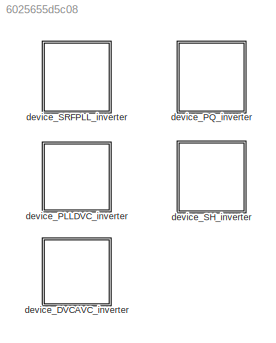
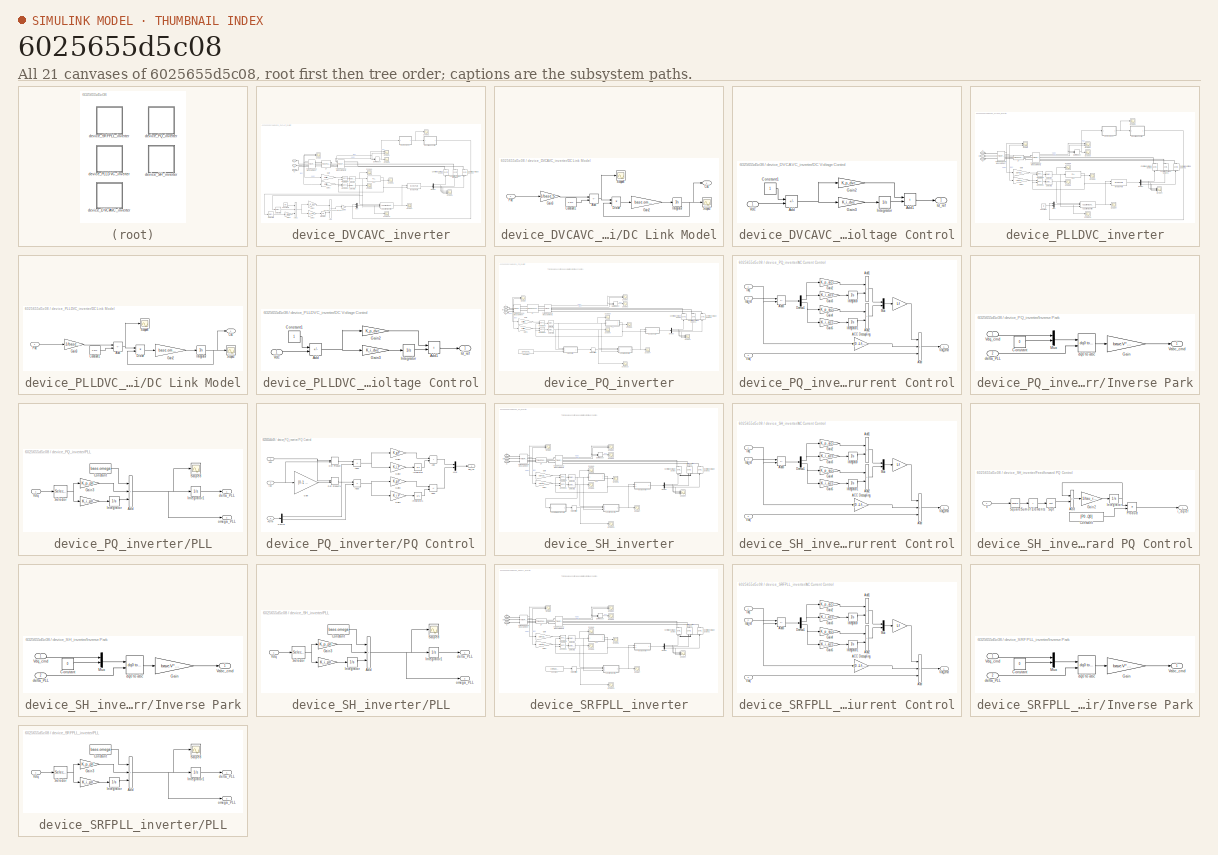
[diagram: thumbnail index - all 21 canvases of the model, root first then tree order]
MODEL slx_6025655d5c08
KIND library
CONFIG AbsTol = auto
CONFIG EnableMultiTasking = off
CONFIG FixedStep = auto
CONFIG MaxStep = auto
CONFIG MinStep = auto
CONFIG RelTol = 1e-3
CONFIG SampleTimeConstraint = Unconstrained
CONFIG SolverName = VariableStepAuto
CONFIG StartTime = 0.0
CONFIG StopTime = 10.0
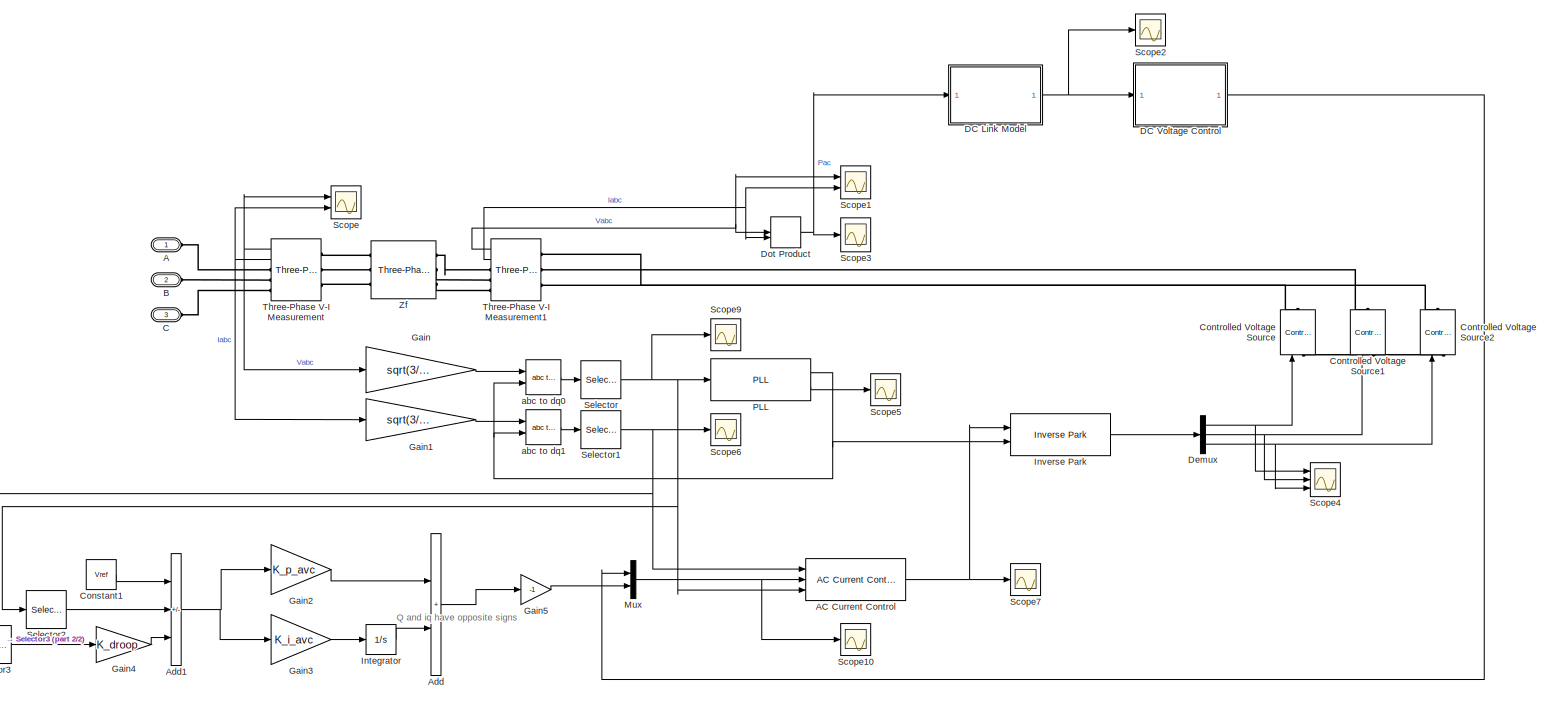
[diagram: device_DVCAVC_inverter - part 1/2, most of the canvas]
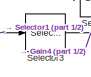
[diagram: device_DVCAVC_inverter - part 2/2, bottom left region]
BLOCK [SubSystem] device_DVCAVC_inverter
  Ports = [0, 0, 0, 0, 0, 3]
  RequestExecContextInheritance = off
BLOCK [PMIOPort] device_DVCAVC_inverter/A 
  Side = Left
BLOCK [Reference] device_DVCAVC_inverter/AC Current Control  REF=$bdroot/device_SRFPLL_inverter/AC Current Control
  Ports = [3, 1]
  SourceBlock = $bdroot/device_SRFPLL_inverter/AC Current Control
  SourceType = SubSystem
BLOCK [Sum] device_DVCAVC_inverter/Add
  IconShape = rectangular
  Ports = [2, 1]
BLOCK [Sum] device_DVCAVC_inverter/Add1
  IconShape = rectangular
  Inputs = +-+
  Ports = [3, 1]
BLOCK [PMIOPort] device_DVCAVC_inverter/B
  Port = 2
  Side = Left
BLOCK [PMIOPort] device_DVCAVC_inverter/C
  Port = 3
  Side = Left
BLOCK [Constant] device_DVCAVC_inverter/Constant1
  Value = Vref
BLOCK [Reference] device_DVCAVC_inverter/Controlled Voltage Source  REF=spsControlledVoltageSourceLib/Controlled Voltage Source
  NameLocation = right
  Ports = [1, 0, 0, 0, 0, 1, 1]
  SourceBlock = spsControlledVoltageSourceLib/Controlled Voltage Source
  SourceProductBaseCode = PS
  SourceType = Controlled Voltage Source
BLOCK [Reference] device_DVCAVC_inverter/Controlled Voltage Source1  REF=spsControlledVoltageSourceLib/Controlled Voltage Source
  NameLocation = right
  Ports = [1, 0, 0, 0, 0, 1, 1]
  SourceBlock = spsControlledVoltageSourceLib/Controlled Voltage Source
  SourceProductBaseCode = PS
  SourceType = Controlled Voltage Source
BLOCK [Reference] device_DVCAVC_inverter/Controlled Voltage Source2  REF=spsControlledVoltageSourceLib/Controlled Voltage Source
  NameLocation = right
  Ports = [1, 0, 0, 0, 0, 1, 1]
  SourceBlock = spsControlledVoltageSourceLib/Controlled Voltage Source
  SourceProductBaseCode = PS
  SourceType = Controlled Voltage Source
BLOCK [SubSystem] device_DVCAVC_inverter/DC Link Model
  Ports = [1, 1]
  RequestExecContextInheritance = off
BLOCK [Sum] device_DVCAVC_inverter/DC Link Model/Add
  IconShape = rectangular
  Inputs = -+
  Ports = [2, 1]
BLOCK [Outport] device_DVCAVC_inverter/DC Link Model/Cdc
BLOCK [Constant] device_DVCAVC_inverter/DC Link Model/Constant1
  Value = Psrc
BLOCK [Product] device_DVCAVC_inverter/DC Link Model/Divide
  Inputs = */
  Ports = [2, 1]
BLOCK [Gain] device_DVCAVC_inverter/DC Link Model/Gain2
  Gain = base.omega/Cdc
BLOCK [Gain] device_DVCAVC_inverter/DC Link Model/Gain3
  Gain = 1/base.S
BLOCK [Integrator] device_DVCAVC_inverter/DC Link Model/Integrator
  InitialCondition = 1
  Ports = [1, 1]
BLOCK [Inport] device_DVCAVC_inverter/DC Link Model/Pac
BLOCK [Scope] device_DVCAVC_inverter/DC Link Model/Scope2
  Floating = off
  NumInputPorts = 1
  Ports = [1]
  ScopeSpecificationString = Simulink.scopes.TimeScopeBlockCfg('CurrentConfiguration', extmgr.ConfigurationSet(extmgr.Configuration('Core','General UI',true),extmgr.Configuration('Core','Source UI',true),extmgr.Configuration('Sources','WiredSimulink',true),extmgr.Configuration('Visuals','Time Domain',true,'SerializedDisplays',{struct('MinYLimReal','-0.26434','MaxYLimReal','1.08244','YLabelReal','','MinYLimMag','0.00000','MaxY...<+1403ch>
BLOCK [Scope] device_DVCAVC_inverter/DC Link Model/Scope8
  Floating = off
  NumInputPorts = 1
  Ports = [1]
  ScopeSpecificationString = Simulink.scopes.TimeScopeBlockCfg('CurrentConfiguration', extmgr.ConfigurationSet(extmgr.Configuration('Core','General UI',true),extmgr.Configuration('Core','Source UI',true),extmgr.Configuration('Sources','WiredSimulink',true,'DataLoggingVariableName','ScopeData10'),extmgr.Configuration('Visuals','Time Domain',true,'SerializedDisplays',{struct('MinYLimReal','-1.51743','MaxYLimReal','-0.1871','YLa...<+1382ch>
BLOCK [SubSystem] device_DVCAVC_inverter/DC Voltage Control
  Ports = [1, 1]
  RequestExecContextInheritance = off
BLOCK [Sum] device_DVCAVC_inverter/DC Voltage Control/Add
  IconShape = rectangular
  Inputs = -+
  Ports = [2, 1]
BLOCK [Sum] device_DVCAVC_inverter/DC Voltage Control/Add1
  IconShape = rectangular
  Ports = [2, 1]
BLOCK [Constant] device_DVCAVC_inverter/DC Voltage Control/Constant1
BLOCK [Gain] device_DVCAVC_inverter/DC Voltage Control/Gain2
  Gain = K_p_dvc
BLOCK [Gain] device_DVCAVC_inverter/DC Voltage Control/Gain3
  Gain = K_i_dvc
BLOCK [Outport] device_DVCAVC_inverter/DC Voltage Control/Id_ref
BLOCK [Integrator] device_DVCAVC_inverter/DC Voltage Control/Integrator
  InitialCondition = Psrc
  Ports = [1, 1]
BLOCK [Inport] device_DVCAVC_inverter/DC Voltage Control/Vdc
BLOCK [Demux] device_DVCAVC_inverter/Demux
  Outputs = 3
  Ports = [1, 3]
BLOCK [DotProduct] device_DVCAVC_inverter/Dot Product
  OutDataTypeStr = Inherit: Inherit via internal rule
BLOCK [Gain] device_DVCAVC_inverter/Gain
  Gain = sqrt(3/2)/base.V
BLOCK [Gain] device_DVCAVC_inverter/Gain1
  Gain = sqrt(3/2)/base.I
BLOCK [Gain] device_DVCAVC_inverter/Gain2
  Gain = K_p_avc
BLOCK [Gain] device_DVCAVC_inverter/Gain3
  Gain = K_i_avc
BLOCK [Gain] device_DVCAVC_inverter/Gain4
  Gain = K_droop
BLOCK [Gain] device_DVCAVC_inverter/Gain5
  Gain = -1
BLOCK [Integrator] device_DVCAVC_inverter/Integrator
  Ports = [1, 1]
BLOCK [Reference] device_DVCAVC_inverter/Inverse Park  REF=$bdroot/device_SRFPLL_inverter/Inverse Park
  Ports = [2, 1]
  SourceBlock = $bdroot/device_SRFPLL_inverter/Inverse Park
  SourceType = SubSystem
BLOCK [Mux] device_DVCAVC_inverter/Mux
  DisplayOption = bar
  Inputs = 2
  Ports = [2, 1]
BLOCK [Reference] device_DVCAVC_inverter/PLL  REF=$bdroot/device_SRFPLL_inverter/PLL
  Ports = [1, 2]
  SourceBlock = $bdroot/device_SRFPLL_inverter/PLL
  SourceType = SubSystem
BLOCK [Scope] device_DVCAVC_inverter/Scope
  Floating = off
  NumInputPorts = 2
  Ports = [2]
  ScopeSpecificationString = Simulink.scopes.TimeScopeBlockCfg('CurrentConfiguration', extmgr.ConfigurationSet(extmgr.Configuration('Core','General UI',true),extmgr.Configuration('Core','Source UI',true),extmgr.Configuration('Sources','WiredSimulink',true,'DataLoggingVariableName','ScopeData1'),extmgr.Configuration('Visuals','Time Domain',true,'SerializedDisplays',{struct('MinYLimReal','-18172.23852','MaxYLimReal','16079.1011...<+1980ch>
BLOCK [Scope] device_DVCAVC_inverter/Scope1
  Floating = off
  NumInputPorts = 2
  Ports = [2]
  ScopeSpecificationString = Simulink.scopes.TimeScopeBlockCfg('CurrentConfiguration', extmgr.ConfigurationSet(extmgr.Configuration('Core','General UI',true),extmgr.Configuration('Core','Source UI',true),extmgr.Configuration('Sources','WiredSimulink',true,'DataLoggingVariableName','ScopeData2'),extmgr.Configuration('Visuals','Time Domain',true,'SerializedDisplays',{struct('MinYLimReal','-1323636.40636','MaxYLimReal','1316358....<+1998ch>
BLOCK [Scope] device_DVCAVC_inverter/Scope10
  Floating = off
  NumInputPorts = 1
  Ports = [1]
  ScopeSpecificationString = Simulink.scopes.TimeScopeBlockCfg('CurrentConfiguration', extmgr.ConfigurationSet(extmgr.Configuration('Core','General UI',true),extmgr.Configuration('Core','Source UI',true),extmgr.Configuration('Sources','WiredSimulink',true,'DataLoggingVariableName','ScopeData3'),extmgr.Configuration('Visuals','Time Domain',true,'SerializedDisplays',{struct('MinYLimReal','-0.6653','MaxYLimReal','3.47841','YLabe...<+1456ch>
BLOCK [Scope] device_DVCAVC_inverter/Scope2
  Floating = off
  NumInputPorts = 1
  Ports = [1]
  ScopeSpecificationString = Simulink.scopes.TimeScopeBlockCfg('CurrentConfiguration', extmgr.ConfigurationSet(extmgr.Configuration('Core','General UI',true),extmgr.Configuration('Core','Source UI',true),extmgr.Configuration('Sources','WiredSimulink',true,'DataLoggingVariableName','ScopeData4'),extmgr.Configuration('Visuals','Time Domain',true,'SerializedDisplays',{struct('MinYLimReal','0.99711','MaxYLimReal','1.00117','YLabe...<+1443ch>
BLOCK [Scope] device_DVCAVC_inverter/Scope3
  Floating = off
  NumInputPorts = 1
  Ports = [1]
  ScopeSpecificationString = Simulink.scopes.TimeScopeBlockCfg('CurrentConfiguration', extmgr.ConfigurationSet(extmgr.Configuration('Core','General UI',true),extmgr.Configuration('Core','Source UI',true),extmgr.Configuration('Sources','WiredSimulink',true,'DataLoggingVariableName','ScopeData5'),extmgr.Configuration('Visuals','Time Domain',true,'SerializedDisplays',{struct('MinYLimReal','-59801752.16713','MaxYLimReal','4646811...<+1933ch>
BLOCK [Scope] device_DVCAVC_inverter/Scope4
  Floating = off
  NumInputPorts = 3
  Ports = [3]
  ScopeSpecificationString = Simulink.scopes.TimeScopeBlockCfg('CurrentConfiguration', extmgr.ConfigurationSet(extmgr.Configuration('Core','General UI',true),extmgr.Configuration('Core','Source UI',true),extmgr.Configuration('Sources','WiredSimulink',true,'DataLoggingVariableName','ScopeData6'),extmgr.Configuration('Visuals','Time Domain',true,'SerializedDisplays',{struct('MinYLimReal','32.24044','MaxYLimReal','1425.68306','Y...<+1446ch>  <repeated x4 — deduplicated; at blocks: Scope4>
BLOCK [Scope] device_DVCAVC_inverter/Scope5
  Floating = off
  NumInputPorts = 1
  Ports = [1]
  ScopeSpecificationString = Simulink.scopes.TimeScopeBlockCfg('CurrentConfiguration', extmgr.ConfigurationSet(extmgr.Configuration('Core','General UI',true),extmgr.Configuration('Core','Source UI',true),extmgr.Configuration('Sources','WiredSimulink',true,'DataLoggingVariableName','ScopeData7'),extmgr.Configuration('Visuals','Time Domain',true,'SerializedDisplays',{struct('MinYLimReal','-278.83755','MaxYLimReal','813.98695','...<+1767ch>  <repeated x4 — deduplicated; at blocks: Scope5>
BLOCK [Scope] device_DVCAVC_inverter/Scope6
  Floating = off
  NumInputPorts = 1
  Ports = [1]
  ScopeSpecificationString = Simulink.scopes.TimeScopeBlockCfg('CurrentConfiguration', extmgr.ConfigurationSet(extmgr.Configuration('Core','General UI',true),extmgr.Configuration('Core','Source UI',true),extmgr.Configuration('Sources','WiredSimulink',true,'DataLoggingVariableName','ScopeData8'),extmgr.Configuration('Visuals','Time Domain',true,'SerializedDisplays',{struct('MinYLimReal','-0.93031','MaxYLimReal','2.20405','YLab...<+1457ch>
BLOCK [Scope] device_DVCAVC_inverter/Scope7
  Floating = off
  NumInputPorts = 1
  Ports = [1]
  ScopeSpecificationString = Simulink.scopes.TimeScopeBlockCfg('CurrentConfiguration', extmgr.ConfigurationSet(extmgr.Configuration('Core','General UI',true),extmgr.Configuration('Core','Source UI',true),extmgr.Configuration('Sources','WiredSimulink',true,'DataLoggingVariableName','ScopeData9'),extmgr.Configuration('Visuals','Time Domain',true,'SerializedDisplays',{struct('MinYLimReal','-2.66623','MaxYLimReal','3.20421','YLab...<+1476ch>  <repeated x4 — deduplicated; at blocks: Scope7>
BLOCK [Scope] device_DVCAVC_inverter/Scope9
  Floating = off
  NumInputPorts = 1
  Ports = [1]
  ScopeSpecificationString = Simulink.scopes.TimeScopeBlockCfg('CurrentConfiguration', extmgr.ConfigurationSet(extmgr.Configuration('Core','General UI',true),extmgr.Configuration('Core','Source UI',true),extmgr.Configuration('Sources','WiredSimulink',true,'DataLoggingVariableName','ScopeData10'),extmgr.Configuration('Visuals','Time Domain',true,'SerializedDisplays',{struct('MinYLimReal','-6.30431','MaxYLimReal','13.05627','YL...<+1460ch>
BLOCK [Selector] device_DVCAVC_inverter/Selector
  IndexOptions = Index vector (dialog)
  Indices = [1 2]
  InputPortWidth = 3
  OutputSizes = 1
  Ports = [1, 1]
BLOCK [Selector] device_DVCAVC_inverter/Selector1
  IndexOptions = Index vector (dialog)
  Indices = [1 2]
  InputPortWidth = 3
  OutputSizes = 1
  Ports = [1, 1]
BLOCK [Selector] device_DVCAVC_inverter/Selector2
  IndexOptions = Index vector (dialog)
  Indices = [1]
  InputPortWidth = 2
  OutputSizes = 1
  Ports = [1, 1]
BLOCK [Selector] device_DVCAVC_inverter/Selector3
  IndexOptions = Index vector (dialog)
  Indices = [2]
  InputPortWidth = 2
  OutputSizes = 1
  Ports = [1, 1]
BLOCK [Reference] device_DVCAVC_inverter/Three-Phase V-I Measurement  REF=spsThreePhaseVIMeasurementLib/Three-Phase
V-I Measurement
  Ports = [0, 2, 0, 0, 0, 3, 3]
  SourceBlock = spsThreePhaseVIMeasurementLib/Three-Phase\nV-I Measurement
  SourceProductBaseCode = PS
  SourceType = Three-Phase VI Measurement
BLOCK [Reference] device_DVCAVC_inverter/Three-Phase V-I Measurement1  REF=spsThreePhaseVIMeasurementLib/Three-Phase
V-I Measurement
  Ports = [0, 2, 0, 0, 0, 3, 3]
  SourceBlock = spsThreePhaseVIMeasurementLib/Three-Phase\nV-I Measurement
  SourceProductBaseCode = PS
  SourceType = Three-Phase VI Measurement
BLOCK [Reference] device_DVCAVC_inverter/Zf  REF=spsThreePhaseSeriesRLCBranchLib/Three-Phase
Series RLC Branch
  AttributesFormatString = \n
  Ports = [0, 0, 0, 0, 0, 3, 3]
  SourceBlock = spsThreePhaseSeriesRLCBranchLib/Three-Phase\nSeries RLC Branch
  SourceProductBaseCode = PS
  SourceType = Three-Phase Series RLC Branch
BLOCK [Reference] device_DVCAVC_inverter/abc to dq0  REF=spsabctodq0Lib/abc to dq0
  Ports = [2, 1]
  SourceBlock = spsabctodq0Lib/abc to dq0
  SourceProductBaseCode = PS
  SourceType = abc to dq0 Transformation
BLOCK [Reference] device_DVCAVC_inverter/abc to dq1  REF=spsabctodq0Lib/abc to dq0
  Ports = [2, 1]
  SourceBlock = spsabctodq0Lib/abc to dq0
  SourceProductBaseCode = PS
  SourceType = abc to dq0 Transformation
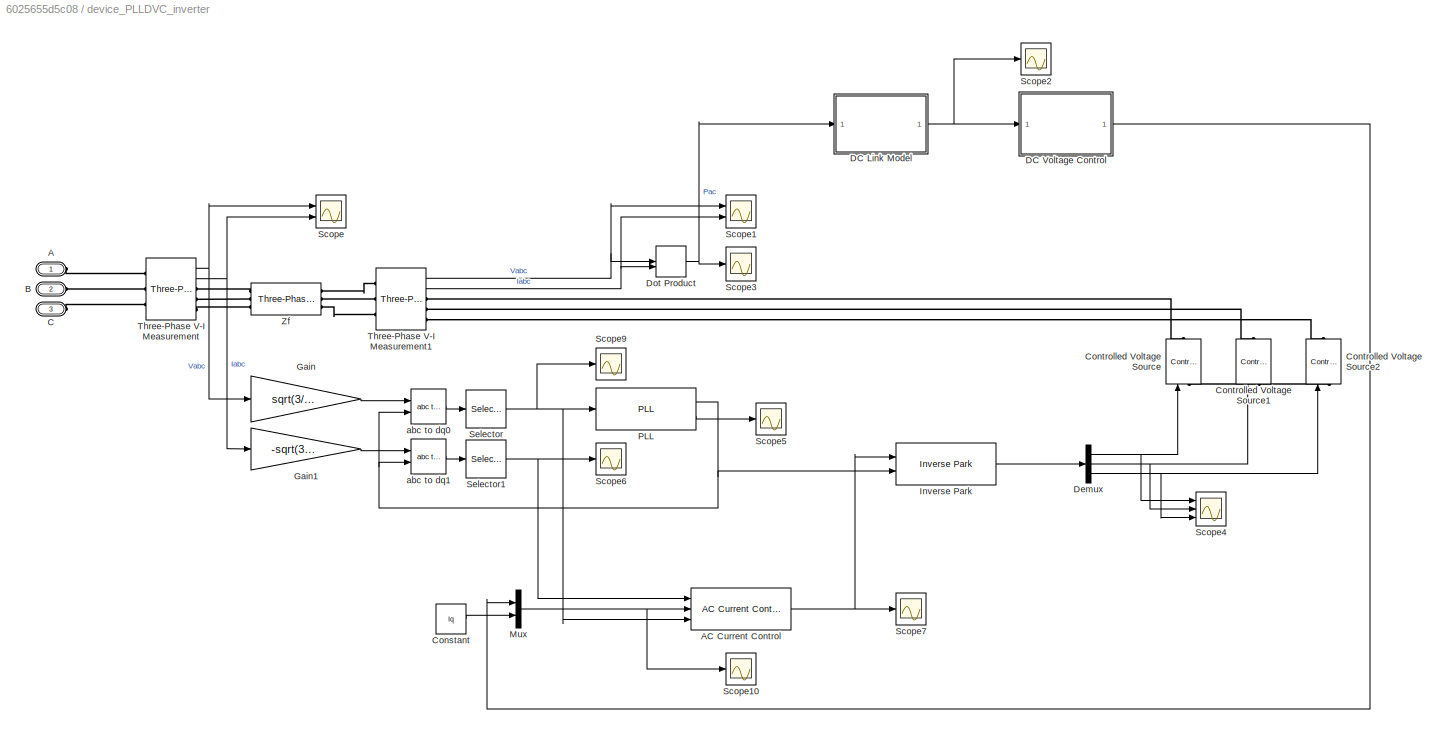
BLOCK [SubSystem] device_PLLDVC_inverter
  Ports = [0, 0, 0, 0, 0, 3]
  RequestExecContextInheritance = off
BLOCK [PMIOPort] device_PLLDVC_inverter/A 
  Side = Left
BLOCK [Reference] device_PLLDVC_inverter/AC Current Control  REF=$bdroot/device_SRFPLL_inverter/AC Current Control
  Ports = [3, 1]
  SourceBlock = $bdroot/device_SRFPLL_inverter/AC Current Control
  SourceType = SubSystem
BLOCK [PMIOPort] device_PLLDVC_inverter/B
  Port = 2
  Side = Left
BLOCK [PMIOPort] device_PLLDVC_inverter/C
  Port = 3
  Side = Left
BLOCK [Constant] device_PLLDVC_inverter/Constant
  Value = Iq
BLOCK [Reference] device_PLLDVC_inverter/Controlled Voltage Source  REF=spsControlledVoltageSourceLib/Controlled Voltage Source
  NameLocation = right
  Ports = [1, 0, 0, 0, 0, 1, 1]
  SourceBlock = spsControlledVoltageSourceLib/Controlled Voltage Source
  SourceProductBaseCode = PS
  SourceType = Controlled Voltage Source
BLOCK [Reference] device_PLLDVC_inverter/Controlled Voltage Source1  REF=spsControlledVoltageSourceLib/Controlled Voltage Source
  NameLocation = right
  Ports = [1, 0, 0, 0, 0, 1, 1]
  SourceBlock = spsControlledVoltageSourceLib/Controlled Voltage Source
  SourceProductBaseCode = PS
  SourceType = Controlled Voltage Source
BLOCK [Reference] device_PLLDVC_inverter/Controlled Voltage Source2  REF=spsControlledVoltageSourceLib/Controlled Voltage Source
  NameLocation = right
  Ports = [1, 0, 0, 0, 0, 1, 1]
  SourceBlock = spsControlledVoltageSourceLib/Controlled Voltage Source
  SourceProductBaseCode = PS
  SourceType = Controlled Voltage Source
BLOCK [SubSystem] device_PLLDVC_inverter/DC Link Model
  Ports = [1, 1]
  RequestExecContextInheritance = off
BLOCK [Sum] device_PLLDVC_inverter/DC Link Model/Add
  IconShape = rectangular
  Inputs = -+
  Ports = [2, 1]
BLOCK [Outport] device_PLLDVC_inverter/DC Link Model/Cdc
BLOCK [Constant] device_PLLDVC_inverter/DC Link Model/Constant1
  Value = Psrc
BLOCK [Product] device_PLLDVC_inverter/DC Link Model/Divide
  Inputs = */
  Ports = [2, 1]
BLOCK [Gain] device_PLLDVC_inverter/DC Link Model/Gain2
  Gain = base.omega/Cdc
BLOCK [Gain] device_PLLDVC_inverter/DC Link Model/Gain3
  Gain = -1/base.S
BLOCK [Integrator] device_PLLDVC_inverter/DC Link Model/Integrator
  InitialCondition = 1
  Ports = [1, 1]
BLOCK [Inport] device_PLLDVC_inverter/DC Link Model/Pac
BLOCK [Scope] device_PLLDVC_inverter/DC Link Model/Scope2
  Floating = off
  NumInputPorts = 1
  Ports = [1]
  ScopeSpecificationString = Simulink.scopes.TimeScopeBlockCfg('CurrentConfiguration', extmgr.ConfigurationSet(extmgr.Configuration('Core','General UI',true),extmgr.Configuration('Core','Source UI',true),extmgr.Configuration('Sources','WiredSimulink',true),extmgr.Configuration('Visuals','Time Domain',true,'SerializedDisplays',{struct('MinYLimReal','-0.26434','MaxYLimReal','1.08244','YLabelReal','','MinYLimMag','0.00000','MaxY...<+1403ch>
BLOCK [Scope] device_PLLDVC_inverter/DC Link Model/Scope8
  Floating = off
  NumInputPorts = 1
  Ports = [1]
  ScopeSpecificationString = Simulink.scopes.TimeScopeBlockCfg('CurrentConfiguration', extmgr.ConfigurationSet(extmgr.Configuration('Core','General UI',true),extmgr.Configuration('Core','Source UI',true),extmgr.Configuration('Sources','WiredSimulink',true,'DataLoggingVariableName','ScopeData10'),extmgr.Configuration('Visuals','Time Domain',true,'SerializedDisplays',{struct('MinYLimReal','-1.51743','MaxYLimReal','-0.1871','YLa...<+1382ch>
BLOCK [SubSystem] device_PLLDVC_inverter/DC Voltage Control
  Ports = [1, 1]
  RequestExecContextInheritance = off
BLOCK [Sum] device_PLLDVC_inverter/DC Voltage Control/Add
  IconShape = rectangular
  Inputs = -+
  Ports = [2, 1]
BLOCK [Sum] device_PLLDVC_inverter/DC Voltage Control/Add1
  IconShape = rectangular
  Ports = [2, 1]
BLOCK [Constant] device_PLLDVC_inverter/DC Voltage Control/Constant1
BLOCK [Gain] device_PLLDVC_inverter/DC Voltage Control/Gain2
  Gain = K_p_dvc
BLOCK [Gain] device_PLLDVC_inverter/DC Voltage Control/Gain3
  Gain = K_i_dvc
BLOCK [Outport] device_PLLDVC_inverter/DC Voltage Control/Id_ref
BLOCK [Integrator] device_PLLDVC_inverter/DC Voltage Control/Integrator
  InitialCondition = Psrc
  Ports = [1, 1]
BLOCK [Inport] device_PLLDVC_inverter/DC Voltage Control/Vdc
BLOCK [Demux] device_PLLDVC_inverter/Demux
  Outputs = 3
  Ports = [1, 3]
BLOCK [DotProduct] device_PLLDVC_inverter/Dot Product
  OutDataTypeStr = Inherit: Inherit via internal rule
BLOCK [Gain] device_PLLDVC_inverter/Gain
  Gain = sqrt(3/2)/base.V
BLOCK [Gain] device_PLLDVC_inverter/Gain1
  Gain = -sqrt(3/2)/base.I
BLOCK [Reference] device_PLLDVC_inverter/Inverse Park  REF=$bdroot/device_SRFPLL_inverter/Inverse Park
  Ports = [2, 1]
  SourceBlock = $bdroot/device_SRFPLL_inverter/Inverse Park
  SourceType = SubSystem
BLOCK [Mux] device_PLLDVC_inverter/Mux
  DisplayOption = bar
  Inputs = 2
  Ports = [2, 1]
BLOCK [Reference] device_PLLDVC_inverter/PLL  REF=$bdroot/device_SRFPLL_inverter/PLL
  Ports = [1, 2]
  SourceBlock = $bdroot/device_SRFPLL_inverter/PLL
  SourceType = SubSystem
BLOCK [Scope] device_PLLDVC_inverter/Scope
  Floating = off
  NumInputPorts = 2
  Ports = [2]
  ScopeSpecificationString = Simulink.scopes.TimeScopeBlockCfg('CurrentConfiguration', extmgr.ConfigurationSet(extmgr.Configuration('Core','General UI',true),extmgr.Configuration('Core','Source UI',true),extmgr.Configuration('Sources','WiredSimulink',true,'DataLoggingVariableName','ScopeData1'),extmgr.Configuration('Visuals','Time Domain',true,'SerializedDisplays',{struct('MinYLimReal','-18172.23852','MaxYLimReal','16079.1011...<+1981ch>
BLOCK [Scope] device_PLLDVC_inverter/Scope1
  Floating = off
  NumInputPorts = 2
  Ports = [2]
  ScopeSpecificationString = Simulink.scopes.TimeScopeBlockCfg('CurrentConfiguration', extmgr.ConfigurationSet(extmgr.Configuration('Core','General UI',true),extmgr.Configuration('Core','Source UI',true),extmgr.Configuration('Sources','WiredSimulink',true,'DataLoggingVariableName','ScopeData2'),extmgr.Configuration('Visuals','Time Domain',true,'SerializedDisplays',{struct('MinYLimReal','-534.62999','MaxYLimReal','553.92767','...<+1967ch>  <repeated x4 — deduplicated; at blocks: Scope1>
BLOCK [Scope] device_PLLDVC_inverter/Scope10
  Floating = off
  NumInputPorts = 1
  Ports = [1]
  ScopeSpecificationString = Simulink.scopes.TimeScopeBlockCfg('CurrentConfiguration', extmgr.ConfigurationSet(extmgr.Configuration('Core','General UI',true),extmgr.Configuration('Core','Source UI',true),extmgr.Configuration('Sources','WiredSimulink',true,'DataLoggingVariableName','ScopeData3'),extmgr.Configuration('Visuals','Time Domain',true,'SerializedDisplays',{struct('MinYLimReal','-0.74055','MaxYLimReal','6.10853','YLab...<+1448ch>
BLOCK [Scope] device_PLLDVC_inverter/Scope2
  Floating = off
  NumInputPorts = 1
  Ports = [1]
  ScopeSpecificationString = Simulink.scopes.TimeScopeBlockCfg('CurrentConfiguration', extmgr.ConfigurationSet(extmgr.Configuration('Core','General UI',true),extmgr.Configuration('Core','Source UI',true),extmgr.Configuration('Sources','WiredSimulink',true,'DataLoggingVariableName','ScopeData11'),extmgr.Configuration('Visuals','Time Domain',true,'SerializedDisplays',{struct('MinYLimReal','0.97329','MaxYLimReal','1.03557','YLab...<+1390ch>
BLOCK [Scope] device_PLLDVC_inverter/Scope3
  Floating = off
  NumInputPorts = 1
  Ports = [1]
  ScopeSpecificationString = Simulink.scopes.TimeScopeBlockCfg('CurrentConfiguration', extmgr.ConfigurationSet(extmgr.Configuration('Core','General UI',true),extmgr.Configuration('Core','Source UI',true),extmgr.Configuration('Sources','WiredSimulink',true,'DataLoggingVariableName','ScopeData4'),extmgr.Configuration('Visuals','Time Domain',true,'SerializedDisplays',{struct('MinYLimReal','-860043146.13126','MaxYLimReal','197623...<+1946ch>
BLOCK [Scope] device_PLLDVC_inverter/Scope4
  Floating = off
  NumInputPorts = 3
  Ports = [3]
  ScopeSpecificationString = Simulink.scopes.TimeScopeBlockCfg('CurrentConfiguration', extmgr.ConfigurationSet(extmgr.Configuration('Core','General UI',true),extmgr.Configuration('Core','Source UI',true),extmgr.Configuration('Sources','WiredSimulink',true,'DataLoggingVariableName','ScopeData5'),extmgr.Configuration('Visuals','Time Domain',true,'SerializedDisplays',{struct('MinYLimReal','32.24044','MaxYLimReal','1425.68306','Y...<+1446ch>
BLOCK [Scope] device_PLLDVC_inverter/Scope5
  Floating = off
  NumInputPorts = 1
  Ports = [1]
  ScopeSpecificationString = Simulink.scopes.TimeScopeBlockCfg('CurrentConfiguration', extmgr.ConfigurationSet(extmgr.Configuration('Core','General UI',true),extmgr.Configuration('Core','Source UI',true),extmgr.Configuration('Sources','WiredSimulink',true,'DataLoggingVariableName','ScopeData6'),extmgr.Configuration('Visuals','Time Domain',true,'SerializedDisplays',{struct('MinYLimReal','-278.83755','MaxYLimReal','813.98695','...<+1767ch>
BLOCK [Scope] device_PLLDVC_inverter/Scope6
  Floating = off
  NumInputPorts = 1
  Ports = [1]
  ScopeSpecificationString = Simulink.scopes.TimeScopeBlockCfg('CurrentConfiguration', extmgr.ConfigurationSet(extmgr.Configuration('Core','General UI',true),extmgr.Configuration('Core','Source UI',true),extmgr.Configuration('Sources','WiredSimulink',true,'DataLoggingVariableName','ScopeData7'),extmgr.Configuration('Visuals','Time Domain',true,'SerializedDisplays',{struct('MinYLimReal','-0.75375','MaxYLimReal','6.67613','YLab...<+1457ch>
BLOCK [Scope] device_PLLDVC_inverter/Scope7
  Floating = off
  NumInputPorts = 1
  Ports = [1]
  ScopeSpecificationString = Simulink.scopes.TimeScopeBlockCfg('CurrentConfiguration', extmgr.ConfigurationSet(extmgr.Configuration('Core','General UI',true),extmgr.Configuration('Core','Source UI',true),extmgr.Configuration('Sources','WiredSimulink',true,'DataLoggingVariableName','ScopeData8'),extmgr.Configuration('Visuals','Time Domain',true,'SerializedDisplays',{struct('MinYLimReal','-2.66623','MaxYLimReal','3.20421','YLab...<+1476ch>
BLOCK [Scope] device_PLLDVC_inverter/Scope9
  Floating = off
  NumInputPorts = 1
  Ports = [1]
  ScopeSpecificationString = Simulink.scopes.TimeScopeBlockCfg('CurrentConfiguration', extmgr.ConfigurationSet(extmgr.Configuration('Core','General UI',true),extmgr.Configuration('Core','Source UI',true),extmgr.Configuration('Sources','WiredSimulink',true,'DataLoggingVariableName','ScopeData9'),extmgr.Configuration('Visuals','Time Domain',true,'SerializedDisplays',{struct('MinYLimReal','-1.95708','MaxYLimReal','2.3431','YLabe...<+1451ch>
BLOCK [Selector] device_PLLDVC_inverter/Selector
  IndexOptions = Index vector (dialog)
  Indices = [1 2]
  InputPortWidth = 3
  OutputSizes = 1
  Ports = [1, 1]
BLOCK [Selector] device_PLLDVC_inverter/Selector1
  IndexOptions = Index vector (dialog)
  Indices = [1 2]
  InputPortWidth = 3
  OutputSizes = 1
  Ports = [1, 1]
BLOCK [Reference] device_PLLDVC_inverter/Three-Phase V-I Measurement  REF=spsThreePhaseVIMeasurementLib/Three-Phase
V-I Measurement
  Ports = [0, 2, 0, 0, 0, 3, 3]
  SourceBlock = spsThreePhaseVIMeasurementLib/Three-Phase\nV-I Measurement
  SourceProductBaseCode = PS
  SourceType = Three-Phase VI Measurement
BLOCK [Reference] device_PLLDVC_inverter/Three-Phase V-I Measurement1  REF=spsThreePhaseVIMeasurementLib/Three-Phase
V-I Measurement
  Ports = [0, 2, 0, 0, 0, 3, 3]
  SourceBlock = spsThreePhaseVIMeasurementLib/Three-Phase\nV-I Measurement
  SourceProductBaseCode = PS
  SourceType = Three-Phase VI Measurement
BLOCK [Reference] device_PLLDVC_inverter/Zf  REF=spsThreePhaseSeriesRLCBranchLib/Three-Phase
Series RLC Branch
  AttributesFormatString = \n
  Ports = [0, 0, 0, 0, 0, 3, 3]
  SourceBlock = spsThreePhaseSeriesRLCBranchLib/Three-Phase\nSeries RLC Branch
  SourceProductBaseCode = PS
  SourceType = Three-Phase Series RLC Branch
BLOCK [Reference] device_PLLDVC_inverter/abc to dq0  REF=spsabctodq0Lib/abc to dq0
  Ports = [2, 1]
  SourceBlock = spsabctodq0Lib/abc to dq0
  SourceProductBaseCode = PS
  SourceType = abc to dq0 Transformation
BLOCK [Reference] device_PLLDVC_inverter/abc to dq1  REF=spsabctodq0Lib/abc to dq0
  Ports = [2, 1]
  SourceBlock = spsabctodq0Lib/abc to dq0
  SourceProductBaseCode = PS
  SourceType = abc to dq0 Transformation
BLOCK [SubSystem] device_PQ_inverter
  Ports = [0, 0, 0, 0, 0, 3]
  RequestExecContextInheritance = off
BLOCK [PMIOPort] device_PQ_inverter/A
  Side = Left
BLOCK [SubSystem] device_PQ_inverter/AC Current Control
  Ports = [3, 1]
  RequestExecContextInheritance = off
BLOCK [Gain] device_PQ_inverter/AC Current Control/  
  Gain = Lf
BLOCK [Gain] device_PQ_inverter/AC Current Control/ACC Decoupling
  Gain = [0 -Lf; Lf 0]
  Multiplication = Matrix(K*u) (u vector)
BLOCK [Sum] device_PQ_inverter/AC Current Control/Add
  IconShape = rectangular
  Inputs = 3
  Ports = [3, 1]
BLOCK [Sum] device_PQ_inverter/AC Current Control/Add1
  IconShape = rectangular
  Ports = [2, 1]
BLOCK [Sum] device_PQ_inverter/AC Current Control/Add2
  IconShape = rectangular
  Ports = [2, 1]
BLOCK [Sum] device_PQ_inverter/AC Current Control/Add3
  IconShape = rectangular
  Inputs = +-
  Ports = [2, 1]
BLOCK [Demux] device_PQ_inverter/AC Current Control/Demux1
  Outputs = 2
  Ports = [1, 2]
BLOCK [Gain] device_PQ_inverter/AC Current Control/Gain2
  Gain = K_p_acc
BLOCK [Gain] device_PQ_inverter/AC Current Control/Gain3
  Gain = K_i_acc
BLOCK [Gain] device_PQ_inverter/AC Current Control/Gain4
  Gain = K_p_acc
BLOCK [Gain] device_PQ_inverter/AC Current Control/Gain5
  Gain = K_i_acc
BLOCK [Inport] device_PQ_inverter/AC Current Control/Idq
BLOCK [Inport] device_PQ_inverter/AC Current Control/Idq_ref
  Port = 2
BLOCK [Integrator] device_PQ_inverter/AC Current Control/Integrator
  Ports = [1, 1]
BLOCK [Integrator] device_PQ_inverter/AC Current Control/Integrator1
  Ports = [1, 1]
BLOCK [Mux] device_PQ_inverter/AC Current Control/Mux
  DisplayOption = bar
  Inputs = 2
  Ports = [2, 1]
BLOCK [Inport] device_PQ_inverter/AC Current Control/Vdq
  Port = 3
BLOCK [Outport] device_PQ_inverter/AC Current Control/Vdq_cmd
BLOCK [PMIOPort] device_PQ_inverter/B
  Port = 2
  Side = Left
BLOCK [PMIOPort] device_PQ_inverter/C
  Port = 3
  Side = Left
BLOCK [Constant] device_PQ_inverter/Constant
  Value = S0 * [cosd(phi) sind(phi)]
BLOCK [Reference] device_PQ_inverter/Controlled Voltage Source  REF=spsControlledVoltageSourceLib/Controlled Voltage Source
  NameLocation = right
  Ports = [1, 0, 0, 0, 0, 1, 1]
  SourceBlock = spsControlledVoltageSourceLib/Controlled Voltage Source
  SourceProductBaseCode = PS
  SourceType = Controlled Voltage Source
BLOCK [Reference] device_PQ_inverter/Controlled Voltage Source1  REF=spsControlledVoltageSourceLib/Controlled Voltage Source
  NameLocation = right
  Ports = [1, 0, 0, 0, 0, 1, 1]
  SourceBlock = spsControlledVoltageSourceLib/Controlled Voltage Source
  SourceProductBaseCode = PS
  SourceType = Controlled Voltage Source
BLOCK [Reference] device_PQ_inverter/Controlled Voltage Source2  REF=spsControlledVoltageSourceLib/Controlled Voltage Source
  NameLocation = right
  Ports = [1, 0, 0, 0, 0, 1, 1]
  SourceBlock = spsControlledVoltageSourceLib/Controlled Voltage Source
  SourceProductBaseCode = PS
  SourceType = Controlled Voltage Source
BLOCK [Demux] device_PQ_inverter/Demux
  Outputs = 3
  Ports = [1, 3]
BLOCK [DotProduct] device_PQ_inverter/Dot Product
  OutDataTypeStr = Inherit: Inherit via internal rule
BLOCK [Gain] device_PQ_inverter/Gain
  Gain = sqrt(3/2)/base.V
BLOCK [Gain] device_PQ_inverter/Gain1
  Gain = sqrt(3/2)/base.I
BLOCK [SubSystem] device_PQ_inverter/Inverse Park
  Ports = [2, 1]
  RequestExecContextInheritance = off
BLOCK [Constant] device_PQ_inverter/Inverse Park/Constant
  Value = 0
BLOCK [Gain] device_PQ_inverter/Inverse Park/Gain
  Gain = base.V*sqrt(2/3)
BLOCK [Mux] device_PQ_inverter/Inverse Park/Mux
  DisplayOption = bar
  Inputs = 2
  Ports = [2, 1]
BLOCK [Outport] device_PQ_inverter/Inverse Park/Vabc_cmd
BLOCK [Inport] device_PQ_inverter/Inverse Park/Vdq_cmd
BLOCK [Inport] device_PQ_inverter/Inverse Park/delta_PLL
  Port = 2
BLOCK [Reference] device_PQ_inverter/Inverse Park/dq0 to abc  REF=spsdq0toabcLib/dq0 to abc
  Ports = [2, 1]
  SourceBlock = spsdq0toabcLib/dq0 to abc
  SourceProductBaseCode = PS
  SourceType = dq0 to abc Transformation
BLOCK [SubSystem] device_PQ_inverter/PLL
  Ports = [1, 2]
  RequestExecContextInheritance = off
BLOCK [Gain] device_PQ_inverter/PLL/ 
  Gain = K_i_pll
BLOCK [Sum] device_PQ_inverter/PLL/Add
  IconShape = rectangular
  Inputs = +++
  Ports = [3, 1]
BLOCK [Constant] device_PQ_inverter/PLL/Constant
  Value = base.omega
BLOCK [Gain] device_PQ_inverter/PLL/Gain3
  Gain = K_p_pll
BLOCK [Integrator] device_PQ_inverter/PLL/Integrator
  Ports = [1, 1]
BLOCK [Integrator] device_PQ_inverter/PLL/Integrator1
  Ports = [1, 1]
BLOCK [Scope] device_PQ_inverter/PLL/Scope8
  Floating = off
  NumInputPorts = 1
  Ports = [1]
  ScopeSpecificationString = Simulink.scopes.TimeScopeBlockCfg('CurrentConfiguration', extmgr.ConfigurationSet(extmgr.Configuration('Core','General UI',true),extmgr.Configuration('Core','Source UI',true),extmgr.Configuration('Sources','WiredSimulink',true,'DataLoggingVariableName','ScopeData2'),extmgr.Configuration('Visuals','Time Domain',true,'SerializedDisplays',{struct('MinYLimReal','307.20481','MaxYLimReal','321.21322','Y...<+1447ch>  <repeated x3 — deduplicated; at blocks: Scope8>
BLOCK [Selector] device_PQ_inverter/PLL/Selector
  IndexOptions = Index vector (dialog)
  Indices = [2]
  InputPortWidth = 2
  OutputSizes = 1
  Ports = [1, 1]
BLOCK [Inport] device_PQ_inverter/PLL/Vdq
  NameLocation = left
BLOCK [Outport] device_PQ_inverter/PLL/delta_PLL
BLOCK [Outport] device_PQ_inverter/PLL/omega_PLL
  Port = 2
BLOCK [SubSystem] device_PQ_inverter/PQ Control
  Ports = [3, 1]
  RequestExecContextInheritance = off
BLOCK [Sum] device_PQ_inverter/PQ Control/Add
  IconShape = rectangular
  Ports = [2, 1]
BLOCK [Sum] device_PQ_inverter/PQ Control/Add1
  IconShape = rectangular
  Inputs = --
  Ports = [2, 1]
BLOCK [Sum] device_PQ_inverter/PQ Control/Add2
  IconShape = rectangular
  Inputs = -+
  Ports = [2, 1]
BLOCK [Sum] device_PQ_inverter/PQ Control/Add3
  IconShape = rectangular
  Inputs = -+
  Ports = [2, 1]
BLOCK [Demux] device_PQ_inverter/PQ Control/Demux
  Outputs = 2
  Ports = [1, 2]
BLOCK [DotProduct] device_PQ_inverter/PQ Control/Dot Product
  OutDataTypeStr = Inherit: Inherit via internal rule
BLOCK [DotProduct] device_PQ_inverter/PQ Control/Dot Product1
  OutDataTypeStr = Inherit: Inherit via internal rule
BLOCK [Gain] device_PQ_inverter/PQ Control/Gain
  Gain = [0 -1; 1 0]
  Multiplication = Matrix(K*u) (u vector)
BLOCK [Gain] device_PQ_inverter/PQ Control/Gain1
  Gain = K_p_P
BLOCK [Gain] device_PQ_inverter/PQ Control/Gain2
  Gain = K_i_P
BLOCK [Gain] device_PQ_inverter/PQ Control/Gain3
  Gain = K_p_P
BLOCK [Gain] device_PQ_inverter/PQ Control/Gain4
  Gain = K_i_P
BLOCK [Inport] device_PQ_inverter/PQ Control/Idq
  Port = 2
BLOCK [Integrator] device_PQ_inverter/PQ Control/Integrator
  Ports = [1, 1]
BLOCK [Integrator] device_PQ_inverter/PQ Control/Integrator1
  Ports = [1, 1]
BLOCK [Mux] device_PQ_inverter/PQ Control/Mux
  DisplayOption = bar
  Inputs = 2
  Ports = [2, 1]
BLOCK [Inport] device_PQ_inverter/PQ Control/PQref
  Port = 3
BLOCK [Inport] device_PQ_inverter/PQ Control/Vdq
BLOCK [Outport] device_PQ_inverter/PQ Control/idq_ref
BLOCK [RateLimiter] device_PQ_inverter/Rate Limiter
  FallingSlewLimit = -1000
  RisingSlewLimit = 1000
  SampleTimeMode = inherited
BLOCK [Scope] device_PQ_inverter/Scope
  Floating = off
  NumInputPorts = 2
  Ports = [2]
  ScopeSpecificationString = Simulink.scopes.TimeScopeBlockCfg('CurrentConfiguration', extmgr.ConfigurationSet(extmgr.Configuration('Core','General UI',true),extmgr.Configuration('Core','Source UI',true),extmgr.Configuration('Sources','WiredSimulink',true,'DataLoggingVariableName','ScopeData1'),extmgr.Configuration('Visuals','Time Domain',true,'SerializedDisplays',{struct('MinYLimReal','-679.00529','MaxYLimReal','524.74638','...<+1942ch>  <repeated x3 — deduplicated; at blocks: Scope>
BLOCK [Scope] device_PQ_inverter/Scope1
  Floating = off
  NumInputPorts = 2
  Ports = [2]
BLOCK [Scope] device_PQ_inverter/Scope10
  Floating = off
  NumInputPorts = 1
  Ports = [1]
  ScopeSpecificationString = Simulink.scopes.TimeScopeBlockCfg('CurrentConfiguration', extmgr.ConfigurationSet(extmgr.Configuration('Core','General UI',true),extmgr.Configuration('Core','Source UI',true),extmgr.Configuration('Sources','WiredSimulink',true,'DataLoggingVariableName','ScopeData3'),extmgr.Configuration('Visuals','Time Domain',true,'SerializedDisplays',{struct('MinYLimReal','-0.04816','MaxYLimReal','1.00034','YLab...<+1464ch>  <repeated x3 — deduplicated; at blocks: Scope10>
BLOCK [Scope] device_PQ_inverter/Scope3
  Floating = off
  NumInputPorts = 1
  Ports = [1]
  ScopeSpecificationString = Simulink.scopes.TimeScopeBlockCfg('CurrentConfiguration', extmgr.ConfigurationSet(extmgr.Configuration('Core','General UI',true),extmgr.Configuration('Core','Source UI',true),extmgr.Configuration('Sources','WiredSimulink',true,'DataLoggingVariableName','ScopeData5'),extmgr.Configuration('Visuals','Time Domain',true,'SerializedDisplays',{struct('MinYLimReal','-77909.77247','MaxYLimReal','39875.9148...<+1931ch>  <repeated x3 — deduplicated; at blocks: Scope3>
BLOCK [Scope] device_PQ_inverter/Scope4
  Floating = off
  NumInputPorts = 3
  Ports = [3]
BLOCK [Scope] device_PQ_inverter/Scope5
  Floating = off
  NumInputPorts = 1
  Ports = [1]
BLOCK [Scope] device_PQ_inverter/Scope6
  Floating = off
  NumInputPorts = 1
  Ports = [1]
  ScopeSpecificationString = Simulink.scopes.TimeScopeBlockCfg('CurrentConfiguration', extmgr.ConfigurationSet(extmgr.Configuration('Core','General UI',true),extmgr.Configuration('Core','Source UI',true),extmgr.Configuration('Sources','WiredSimulink',true,'DataLoggingVariableName','ScopeData8'),extmgr.Configuration('Visuals','Time Domain',true,'SerializedDisplays',{struct('MinYLimReal','-1.39184','MaxYLimReal','3.94721','YLab...<+1457ch>  <repeated x3 — deduplicated; at blocks: Scope6>
BLOCK [Scope] device_PQ_inverter/Scope7
  Floating = off
  NumInputPorts = 1
  Ports = [1]
BLOCK [Scope] device_PQ_inverter/Scope9
  Floating = off
  NumInputPorts = 1
  Ports = [1]
  ScopeSpecificationString = Simulink.scopes.TimeScopeBlockCfg('CurrentConfiguration', extmgr.ConfigurationSet(extmgr.Configuration('Core','General UI',true),extmgr.Configuration('Core','Source UI',true),extmgr.Configuration('Sources','WiredSimulink',true,'DataLoggingVariableName','ScopeData11'),extmgr.Configuration('Visuals','Time Domain',true,'SerializedDisplays',{struct('MinYLimReal','-1.95708','MaxYLimReal','2.3431','YLab...<+1452ch>  <repeated x3 — deduplicated; at blocks: Scope9>
BLOCK [Selector] device_PQ_inverter/Selector
  IndexOptions = Index vector (dialog)
  Indices = [1 2]
  InputPortWidth = 3
  OutputSizes = 1
  Ports = [1, 1]
BLOCK [Selector] device_PQ_inverter/Selector1
  IndexOptions = Index vector (dialog)
  Indices = [1 2]
  InputPortWidth = 3
  OutputSizes = 1
  Ports = [1, 1]
BLOCK [Reference] device_PQ_inverter/Three-Phase V-I Measurement  REF=spsThreePhaseVIMeasurementLib/Three-Phase
V-I Measurement
  Ports = [0, 2, 0, 0, 0, 3, 3]
  SourceBlock = spsThreePhaseVIMeasurementLib/Three-Phase\nV-I Measurement
  SourceProductBaseCode = PS
  SourceType = Three-Phase VI Measurement
BLOCK [Reference] device_PQ_inverter/Three-Phase V-I Measurement1  REF=spsThreePhaseVIMeasurementLib/Three-Phase
V-I Measurement
  Ports = [0, 2, 0, 0, 0, 3, 3]
  SourceBlock = spsThreePhaseVIMeasurementLib/Three-Phase\nV-I Measurement
  SourceProductBaseCode = PS
  SourceType = Three-Phase VI Measurement
BLOCK [Reference] device_PQ_inverter/Zf  REF=spsThreePhaseSeriesRLCBranchLib/Three-Phase
Series RLC Branch
  AttributesFormatString = \n
  Ports = [0, 0, 0, 0, 0, 3, 3]
  SourceBlock = spsThreePhaseSeriesRLCBranchLib/Three-Phase\nSeries RLC Branch
  SourceProductBaseCode = PS
  SourceType = Three-Phase Series RLC Branch
BLOCK [Reference] device_PQ_inverter/abc to dq0  REF=spsabctodq0Lib/abc to dq0
  Ports = [2, 1]
  SourceBlock = spsabctodq0Lib/abc to dq0
  SourceProductBaseCode = PS
  SourceType = abc to dq0 Transformation
BLOCK [Reference] device_PQ_inverter/abc to dq1  REF=spsabctodq0Lib/abc to dq0
  Ports = [2, 1]
  SourceBlock = spsabctodq0Lib/abc to dq0
  SourceProductBaseCode = PS
  SourceType = abc to dq0 Transformation
BLOCK [SubSystem] device_SH_inverter
  Ports = [0, 0, 0, 0, 0, 3]
  RequestExecContextInheritance = off
BLOCK [PMIOPort] device_SH_inverter/A
  Side = Left
BLOCK [SubSystem] device_SH_inverter/AC Current Control
  Ports = [3, 1]
  RequestExecContextInheritance = off
BLOCK [Gain] device_SH_inverter/AC Current Control/  
  Gain = Lf
BLOCK [Gain] device_SH_inverter/AC Current Control/ACC Decoupling
  Gain = [0 -Lf; Lf 0]
  Multiplication = Matrix(K*u) (u vector)
BLOCK [Sum] device_SH_inverter/AC Current Control/Add
  IconShape = rectangular
  Inputs = 3
  Ports = [3, 1]
BLOCK [Sum] device_SH_inverter/AC Current Control/Add1
  IconShape = rectangular
  Ports = [2, 1]
BLOCK [Sum] device_SH_inverter/AC Current Control/Add2
  IconShape = rectangular
  Ports = [2, 1]
BLOCK [Sum] device_SH_inverter/AC Current Control/Add3
  IconShape = rectangular
  Inputs = +-
  Ports = [2, 1]
BLOCK [Demux] device_SH_inverter/AC Current Control/Demux1
  Outputs = 2
  Ports = [1, 2]
BLOCK [Gain] device_SH_inverter/AC Current Control/Gain2
  Gain = K_p_acc
BLOCK [Gain] device_SH_inverter/AC Current Control/Gain3
  Gain = K_i_acc
BLOCK [Gain] device_SH_inverter/AC Current Control/Gain4
  Gain = K_p_acc
BLOCK [Gain] device_SH_inverter/AC Current Control/Gain5
  Gain = K_i_acc
BLOCK [Inport] device_SH_inverter/AC Current Control/Idq
BLOCK [Inport] device_SH_inverter/AC Current Control/Idq_ref
  Port = 2
BLOCK [Integrator] device_SH_inverter/AC Current Control/Integrator
  Ports = [1, 1]
BLOCK [Integrator] device_SH_inverter/AC Current Control/Integrator1
  Ports = [1, 1]
BLOCK [Mux] device_SH_inverter/AC Current Control/Mux
  DisplayOption = bar
  Inputs = 2
  Ports = [2, 1]
BLOCK [Inport] device_SH_inverter/AC Current Control/Vdq
  Port = 3
BLOCK [Outport] device_SH_inverter/AC Current Control/Vdq_cmd
BLOCK [PMIOPort] device_SH_inverter/B
  Port = 2
  Side = Left
BLOCK [PMIOPort] device_SH_inverter/C
  Port = 3
  Side = Left
BLOCK [Reference] device_SH_inverter/Controlled Voltage Source  REF=spsControlledVoltageSourceLib/Controlled Voltage Source
  NameLocation = right
  Ports = [1, 0, 0, 0, 0, 1, 1]
  SourceBlock = spsControlledVoltageSourceLib/Controlled Voltage Source
  SourceProductBaseCode = PS
  SourceType = Controlled Voltage Source
BLOCK [Reference] device_SH_inverter/Controlled Voltage Source1  REF=spsControlledVoltageSourceLib/Controlled Voltage Source
  NameLocation = right
  Ports = [1, 0, 0, 0, 0, 1, 1]
  SourceBlock = spsControlledVoltageSourceLib/Controlled Voltage Source
  SourceProductBaseCode = PS
  SourceType = Controlled Voltage Source
BLOCK [Reference] device_SH_inverter/Controlled Voltage Source2  REF=spsControlledVoltageSourceLib/Controlled Voltage Source
  NameLocation = right
  Ports = [1, 0, 0, 0, 0, 1, 1]
  SourceBlock = spsControlledVoltageSourceLib/Controlled Voltage Source
  SourceProductBaseCode = PS
  SourceType = Controlled Voltage Source
BLOCK [Demux] device_SH_inverter/Demux
  Outputs = 3
  Ports = [1, 3]
BLOCK [DotProduct] device_SH_inverter/Dot Product
  OutDataTypeStr = Inherit: Inherit via internal rule
BLOCK [SubSystem] device_SH_inverter/Feedforward PQ Control
  Ports = [1, 1]
  RequestExecContextInheritance = off
BLOCK [Sum] device_SH_inverter/Feedforward PQ Control/Add
  IconShape = rectangular
  Inputs = -+
  Ports = [2, 1]
BLOCK [Constant] device_SH_inverter/Feedforward PQ Control/Constant
  Value = [P0 -Q0]
BLOCK [Gain] device_SH_inverter/Feedforward PQ Control/Gain2
  Gain = 1/tau_rms
BLOCK [Integrator] device_SH_inverter/Feedforward PQ Control/Integrator
  InitialCondition = 1
  Ports = [1, 1]
BLOCK [Product] device_SH_inverter/Feedforward PQ Control/Product
  Inputs = /*
  Ports = [2, 1]
BLOCK [Sqrt] device_SH_inverter/Feedforward PQ Control/Sqrt
BLOCK [Math] device_SH_inverter/Feedforward PQ Control/Square
  Operator = square
  Ports = [1, 1]
BLOCK [Sum] device_SH_inverter/Feedforward PQ Control/Sum of Elements
  IconShape = rectangular
  Inputs = +
  Ports = [1, 1]
BLOCK [Inport] device_SH_inverter/Feedforward PQ Control/V
BLOCK [Outport] device_SH_inverter/Feedforward PQ Control/i_dqref
BLOCK [Gain] device_SH_inverter/Gain
  Gain = sqrt(3/2)/base.V
BLOCK [Gain] device_SH_inverter/Gain1
  Gain = -sqrt(3/2)/base.I
BLOCK [SubSystem] device_SH_inverter/Inverse Park
  Ports = [2, 1]
  RequestExecContextInheritance = off
BLOCK [Constant] device_SH_inverter/Inverse Park/Constant
  Value = 0
BLOCK [Gain] device_SH_inverter/Inverse Park/Gain
  Gain = base.V*sqrt(2/3)
BLOCK [Mux] device_SH_inverter/Inverse Park/Mux
  DisplayOption = bar
  Inputs = 2
  Ports = [2, 1]
BLOCK [Outport] device_SH_inverter/Inverse Park/Vabc_cmd
BLOCK [Inport] device_SH_inverter/Inverse Park/Vdq_cmd
BLOCK [Inport] device_SH_inverter/Inverse Park/delta_PLL
  Port = 2
BLOCK [Reference] device_SH_inverter/Inverse Park/dq0 to abc  REF=spsdq0toabcLib/dq0 to abc
  Ports = [2, 1]
  SourceBlock = spsdq0toabcLib/dq0 to abc
  SourceProductBaseCode = PS
  SourceType = dq0 to abc Transformation
BLOCK [SubSystem] device_SH_inverter/PLL
  Ports = [1, 2]
  RequestExecContextInheritance = off
BLOCK [Gain] device_SH_inverter/PLL/ 
  Gain = K_i_pll
BLOCK [Sum] device_SH_inverter/PLL/Add
  IconShape = rectangular
  Inputs = +++
  Ports = [3, 1]
BLOCK [Constant] device_SH_inverter/PLL/Constant
  Value = base.omega
BLOCK [Gain] device_SH_inverter/PLL/Gain3
  Gain = K_p_pll
BLOCK [Integrator] device_SH_inverter/PLL/Integrator
  Ports = [1, 1]
BLOCK [Integrator] device_SH_inverter/PLL/Integrator1
  Ports = [1, 1]
BLOCK [Scope] device_SH_inverter/PLL/Scope8
  Floating = off
  NumInputPorts = 1
  Ports = [1]
BLOCK [Selector] device_SH_inverter/PLL/Selector
  IndexOptions = Index vector (dialog)
  Indices = [2]
  InputPortWidth = 2
  OutputSizes = 1
  Ports = [1, 1]
BLOCK [Inport] device_SH_inverter/PLL/Vdq
  NameLocation = left
BLOCK [Outport] device_SH_inverter/PLL/delta_PLL
BLOCK [Outport] device_SH_inverter/PLL/omega_PLL
  Port = 2
BLOCK [RateLimiter] device_SH_inverter/Rate Limiter
  FallingSlewLimit = -1000
  RisingSlewLimit = 1000
  SampleTimeMode = inherited
BLOCK [Scope] device_SH_inverter/Scope
  Floating = off
  NumInputPorts = 2
  Ports = [2]
BLOCK [Scope] device_SH_inverter/Scope1
  Floating = off
  NumInputPorts = 2
  Ports = [2]
BLOCK [Scope] device_SH_inverter/Scope10
  Floating = off
  NumInputPorts = 1
  Ports = [1]
BLOCK [Scope] device_SH_inverter/Scope3
  Floating = off
  NumInputPorts = 1
  Ports = [1]
BLOCK [Scope] device_SH_inverter/Scope4
  Floating = off
  NumInputPorts = 3
  Ports = [3]
BLOCK [Scope] device_SH_inverter/Scope5
  Floating = off
  NumInputPorts = 1
  Ports = [1]
BLOCK [Scope] device_SH_inverter/Scope6
  Floating = off
  NumInputPorts = 1
  Ports = [1]
BLOCK [Scope] device_SH_inverter/Scope7
  Floating = off
  NumInputPorts = 1
  Ports = [1]
BLOCK [Scope] device_SH_inverter/Scope9
  Floating = off
  NumInputPorts = 1
  Ports = [1]
BLOCK [Selector] device_SH_inverter/Selector
  IndexOptions = Index vector (dialog)
  Indices = [1 2]
  InputPortWidth = 3
  OutputSizes = 1
  Ports = [1, 1]
BLOCK [Selector] device_SH_inverter/Selector1
  IndexOptions = Index vector (dialog)
  Indices = [1 2]
  InputPortWidth = 3
  OutputSizes = 1
  Ports = [1, 1]
BLOCK [Reference] device_SH_inverter/Three-Phase V-I Measurement  REF=spsThreePhaseVIMeasurementLib/Three-Phase
V-I Measurement
  Ports = [0, 2, 0, 0, 0, 3, 3]
  SourceBlock = spsThreePhaseVIMeasurementLib/Three-Phase\nV-I Measurement
  SourceProductBaseCode = PS
  SourceType = Three-Phase VI Measurement
BLOCK [Reference] device_SH_inverter/Three-Phase V-I Measurement1  REF=spsThreePhaseVIMeasurementLib/Three-Phase
V-I Measurement
  Ports = [0, 2, 0, 0, 0, 3, 3]
  SourceBlock = spsThreePhaseVIMeasurementLib/Three-Phase\nV-I Measurement
  SourceProductBaseCode = PS
  SourceType = Three-Phase VI Measurement
BLOCK [Reference] device_SH_inverter/Zf  REF=spsThreePhaseSeriesRLCBranchLib/Three-Phase
Series RLC Branch
  AttributesFormatString = \n
  Ports = [0, 0, 0, 0, 0, 3, 3]
  SourceBlock = spsThreePhaseSeriesRLCBranchLib/Three-Phase\nSeries RLC Branch
  SourceProductBaseCode = PS
  SourceType = Three-Phase Series RLC Branch
BLOCK [Reference] device_SH_inverter/abc to dq0  REF=spsabctodq0Lib/abc to dq0
  Ports = [2, 1]
  SourceBlock = spsabctodq0Lib/abc to dq0
  SourceProductBaseCode = PS
  SourceType = abc to dq0 Transformation
BLOCK [Reference] device_SH_inverter/abc to dq1  REF=spsabctodq0Lib/abc to dq0
  Ports = [2, 1]
  SourceBlock = spsabctodq0Lib/abc to dq0
  SourceProductBaseCode = PS
  SourceType = abc to dq0 Transformation
BLOCK [SubSystem] device_SRFPLL_inverter
  Ports = [0, 0, 0, 0, 0, 3]
  RequestExecContextInheritance = off
BLOCK [PMIOPort] device_SRFPLL_inverter/A
  Side = Left
BLOCK [SubSystem] device_SRFPLL_inverter/AC Current Control
  Ports = [3, 1]
  RequestExecContextInheritance = off
BLOCK [Gain] device_SRFPLL_inverter/AC Current Control/  
  Gain = Lf
BLOCK [Gain] device_SRFPLL_inverter/AC Current Control/ACC Decoupling
  Gain = [0 -Lf; Lf 0]
  Multiplication = Matrix(K*u) (u vector)
BLOCK [Sum] device_SRFPLL_inverter/AC Current Control/Add
  IconShape = rectangular
  Inputs = 3
  Ports = [3, 1]
BLOCK [Sum] device_SRFPLL_inverter/AC Current Control/Add1
  IconShape = rectangular
  Ports = [2, 1]
BLOCK [Sum] device_SRFPLL_inverter/AC Current Control/Add2
  IconShape = rectangular
  Ports = [2, 1]
BLOCK [Sum] device_SRFPLL_inverter/AC Current Control/Add3
  IconShape = rectangular
  Inputs = +-
  Ports = [2, 1]
BLOCK [Demux] device_SRFPLL_inverter/AC Current Control/Demux1
  Outputs = 2
  Ports = [1, 2]
BLOCK [Gain] device_SRFPLL_inverter/AC Current Control/Gain2
  Gain = K_p_acc
BLOCK [Gain] device_SRFPLL_inverter/AC Current Control/Gain3
  Gain = K_i_acc
BLOCK [Gain] device_SRFPLL_inverter/AC Current Control/Gain4
  Gain = K_p_acc
BLOCK [Gain] device_SRFPLL_inverter/AC Current Control/Gain5
  Gain = K_i_acc
BLOCK [Inport] device_SRFPLL_inverter/AC Current Control/Idq
BLOCK [Inport] device_SRFPLL_inverter/AC Current Control/Idq_ref
  Port = 2
BLOCK [Integrator] device_SRFPLL_inverter/AC Current Control/Integrator
  Ports = [1, 1]
BLOCK [Integrator] device_SRFPLL_inverter/AC Current Control/Integrator1
  Ports = [1, 1]
BLOCK [Mux] device_SRFPLL_inverter/AC Current Control/Mux
  DisplayOption = bar
  Inputs = 2
  Ports = [2, 1]
BLOCK [Inport] device_SRFPLL_inverter/AC Current Control/Vdq
  Port = 3
BLOCK [Outport] device_SRFPLL_inverter/AC Current Control/Vdq_cmd
BLOCK [PMIOPort] device_SRFPLL_inverter/B
  Port = 2
  Side = Left
BLOCK [PMIOPort] device_SRFPLL_inverter/C
  Port = 3
  Side = Left
BLOCK [Constant] device_SRFPLL_inverter/Constant
  Value = Iref * [cosd(phi) sind(phi)]
BLOCK [Reference] device_SRFPLL_inverter/Controlled Voltage Source  REF=spsControlledVoltageSourceLib/Controlled Voltage Source
  NameLocation = right
  Ports = [1, 0, 0, 0, 0, 1, 1]
  SourceBlock = spsControlledVoltageSourceLib/Controlled Voltage Source
  SourceProductBaseCode = PS
  SourceType = Controlled Voltage Source
BLOCK [Reference] device_SRFPLL_inverter/Controlled Voltage Source1  REF=spsControlledVoltageSourceLib/Controlled Voltage Source
  NameLocation = right
  Ports = [1, 0, 0, 0, 0, 1, 1]
  SourceBlock = spsControlledVoltageSourceLib/Controlled Voltage Source
  SourceProductBaseCode = PS
  SourceType = Controlled Voltage Source
BLOCK [Reference] device_SRFPLL_inverter/Controlled Voltage Source2  REF=spsControlledVoltageSourceLib/Controlled Voltage Source
  NameLocation = right
  Ports = [1, 0, 0, 0, 0, 1, 1]
  SourceBlock = spsControlledVoltageSourceLib/Controlled Voltage Source
  SourceProductBaseCode = PS
  SourceType = Controlled Voltage Source
BLOCK [Demux] device_SRFPLL_inverter/Demux
  Outputs = 3
  Ports = [1, 3]
BLOCK [DotProduct] device_SRFPLL_inverter/Dot Product
  OutDataTypeStr = Inherit: Inherit via internal rule
BLOCK [Gain] device_SRFPLL_inverter/Gain
  Gain = sqrt(3/2)/base.V
BLOCK [Gain] device_SRFPLL_inverter/Gain1
  Gain = -sqrt(3/2)/base.I
BLOCK [SubSystem] device_SRFPLL_inverter/Inverse Park
  Ports = [2, 1]
  RequestExecContextInheritance = off
BLOCK [Constant] device_SRFPLL_inverter/Inverse Park/Constant
  Value = 0
BLOCK [Gain] device_SRFPLL_inverter/Inverse Park/Gain
  Gain = base.V*sqrt(2/3)
BLOCK [Mux] device_SRFPLL_inverter/Inverse Park/Mux
  DisplayOption = bar
  Inputs = 2
  Ports = [2, 1]
BLOCK [Outport] device_SRFPLL_inverter/Inverse Park/Vabc_cmd
BLOCK [Inport] device_SRFPLL_inverter/Inverse Park/Vdq_cmd
BLOCK [Inport] device_SRFPLL_inverter/Inverse Park/delta_PLL
  Port = 2
BLOCK [Reference] device_SRFPLL_inverter/Inverse Park/dq0 to abc  REF=spsdq0toabcLib/dq0 to abc
  Ports = [2, 1]
  SourceBlock = spsdq0toabcLib/dq0 to abc
  SourceProductBaseCode = PS
  SourceType = dq0 to abc Transformation
BLOCK [SubSystem] device_SRFPLL_inverter/PLL
  Ports = [1, 2]
  RequestExecContextInheritance = off
BLOCK [Gain] device_SRFPLL_inverter/PLL/ 
  Gain = K_i_pll
BLOCK [Sum] device_SRFPLL_inverter/PLL/Add
  IconShape = rectangular
  Inputs = +++
  Ports = [3, 1]
BLOCK [Constant] device_SRFPLL_inverter/PLL/Constant
  Value = base.omega
BLOCK [Gain] device_SRFPLL_inverter/PLL/Gain3
  Gain = K_p_pll
BLOCK [Integrator] device_SRFPLL_inverter/PLL/Integrator
  Ports = [1, 1]
BLOCK [Integrator] device_SRFPLL_inverter/PLL/Integrator1
  Ports = [1, 1]
BLOCK [Scope] device_SRFPLL_inverter/PLL/Scope8
  Floating = off
  NumInputPorts = 1
  Ports = [1]
BLOCK [Selector] device_SRFPLL_inverter/PLL/Selector
  IndexOptions = Index vector (dialog)
  Indices = [2]
  InputPortWidth = 2
  OutputSizes = 1
  Ports = [1, 1]
BLOCK [Inport] device_SRFPLL_inverter/PLL/Vdq
  NameLocation = left
BLOCK [Outport] device_SRFPLL_inverter/PLL/delta_PLL
BLOCK [Outport] device_SRFPLL_inverter/PLL/omega_PLL
  Port = 2
BLOCK [RateLimiter] device_SRFPLL_inverter/Rate Limiter
  FallingSlewLimit = -1000
  RisingSlewLimit = 1000
  SampleTimeMode = inherited
BLOCK [Scope] device_SRFPLL_inverter/Scope
  Floating = off
  NumInputPorts = 2
  Ports = [2]
BLOCK [Scope] device_SRFPLL_inverter/Scope1
  Floating = off
  NumInputPorts = 2
  Ports = [2]
BLOCK [Scope] device_SRFPLL_inverter/Scope10
  Floating = off
  NumInputPorts = 1
  Ports = [1]
BLOCK [Scope] device_SRFPLL_inverter/Scope3
  Floating = off
  NumInputPorts = 1
  Ports = [1]
BLOCK [Scope] device_SRFPLL_inverter/Scope4
  Floating = off
  NumInputPorts = 3
  Ports = [3]
BLOCK [Scope] device_SRFPLL_inverter/Scope5
  Floating = off
  NumInputPorts = 1
  Ports = [1]
BLOCK [Scope] device_SRFPLL_inverter/Scope6
  Floating = off
  NumInputPorts = 1
  Ports = [1]
BLOCK [Scope] device_SRFPLL_inverter/Scope7
  Floating = off
  NumInputPorts = 1
  Ports = [1]
BLOCK [Scope] device_SRFPLL_inverter/Scope9
  Floating = off
  NumInputPorts = 1
  Ports = [1]
BLOCK [Selector] device_SRFPLL_inverter/Selector
  IndexOptions = Index vector (dialog)
  Indices = [1 2]
  InputPortWidth = 3
  OutputSizes = 1
  Ports = [1, 1]
BLOCK [Selector] device_SRFPLL_inverter/Selector1
  IndexOptions = Index vector (dialog)
  Indices = [1 2]
  InputPortWidth = 3
  OutputSizes = 1
  Ports = [1, 1]
BLOCK [Reference] device_SRFPLL_inverter/Three-Phase V-I Measurement  REF=spsThreePhaseVIMeasurementLib/Three-Phase
V-I Measurement
  Ports = [0, 2, 0, 0, 0, 3, 3]
  SourceBlock = spsThreePhaseVIMeasurementLib/Three-Phase\nV-I Measurement
  SourceProductBaseCode = PS
  SourceType = Three-Phase VI Measurement
BLOCK [Reference] device_SRFPLL_inverter/Three-Phase V-I Measurement1  REF=spsThreePhaseVIMeasurementLib/Three-Phase
V-I Measurement
  Ports = [0, 2, 0, 0, 0, 3, 3]
  SourceBlock = spsThreePhaseVIMeasurementLib/Three-Phase\nV-I Measurement
  SourceProductBaseCode = PS
  SourceType = Three-Phase VI Measurement
BLOCK [Reference] device_SRFPLL_inverter/Zf  REF=spsThreePhaseSeriesRLCBranchLib/Three-Phase
Series RLC Branch
  AttributesFormatString = \n
  Ports = [0, 0, 0, 0, 0, 3, 3]
  SourceBlock = spsThreePhaseSeriesRLCBranchLib/Three-Phase\nSeries RLC Branch
  SourceProductBaseCode = PS
  SourceType = Three-Phase Series RLC Branch
BLOCK [Reference] device_SRFPLL_inverter/abc to dq0  REF=spsabctodq0Lib/abc to dq0
  Ports = [2, 1]
  SourceBlock = spsabctodq0Lib/abc to dq0
  SourceProductBaseCode = PS
  SourceType = abc to dq0 Transformation
BLOCK [Reference] device_SRFPLL_inverter/abc to dq1  REF=spsabctodq0Lib/abc to dq0
  Ports = [2, 1]
  SourceBlock = spsabctodq0Lib/abc to dq0
  SourceProductBaseCode = PS
  SourceType = abc to dq0 Transformation
ANNOTATION device_DVCAVC_inverter: Q and iq have opposite signs
ANNOTATION device_PQ_inverter: This model does not include saturation or DC link dynamics.
ANNOTATION device_SH_inverter: This model does not include saturation or DC link dynamics.
ANNOTATION device_SRFPLL_inverter: This model does not include saturation or DC link dynamics.
NET device_DVCAVC_inverter/AC Current Control:1 -> device_DVCAVC_inverter/Inverse Park:1, device_DVCAVC_inverter/Scope7:1
NET device_DVCAVC_inverter/Add1:1 -> device_DVCAVC_inverter/Gain2:1, device_DVCAVC_inverter/Gain3:1
LINE device_DVCAVC_inverter/Add:1 -> device_DVCAVC_inverter/Gain5:1
LINE device_DVCAVC_inverter/Constant1:1 -> device_DVCAVC_inverter/Add1:1
NET device_DVCAVC_inverter/DC Link Model/Add:1 -> device_DVCAVC_inverter/DC Link Model/Divide:1, device_DVCAVC_inverter/DC Link Model/Scope8:1
LINE device_DVCAVC_inverter/DC Link Model/Constant1:1 -> device_DVCAVC_inverter/DC Link Model/Add:2
LINE device_DVCAVC_inverter/DC Link Model/Divide:1 -> device_DVCAVC_inverter/DC Link Model/Gain2:1
LINE device_DVCAVC_inverter/DC Link Model/Gain2:1 -> device_DVCAVC_inverter/DC Link Model/Integrator:1
LINE device_DVCAVC_inverter/DC Link Model/Gain3:1 -> device_DVCAVC_inverter/DC Link Model/Add:1
NET device_DVCAVC_inverter/DC Link Model/Integrator:1 -> device_DVCAVC_inverter/DC Link Model/Cdc:1, device_DVCAVC_inverter/DC Link Model/Divide:2, device_DVCAVC_inverter/DC Link Model/Scope2:1
LINE device_DVCAVC_inverter/DC Link Model/Pac:1 -> device_DVCAVC_inverter/DC Link Model/Gain3:1
NET device_DVCAVC_inverter/DC Link Model:1 -> device_DVCAVC_inverter/DC Voltage Control:1, device_DVCAVC_inverter/Scope2:1
LINE device_DVCAVC_inverter/DC Voltage Control/Add1:1 -> device_DVCAVC_inverter/DC Voltage Control/Id_ref:1
NET device_DVCAVC_inverter/DC Voltage Control/Add:1 -> device_DVCAVC_inverter/DC Voltage Control/Gain2:1, device_DVCAVC_inverter/DC Voltage Control/Gain3:1
LINE device_DVCAVC_inverter/DC Voltage Control/Constant1:1 -> device_DVCAVC_inverter/DC Voltage Control/Add:1
LINE device_DVCAVC_inverter/DC Voltage Control/Gain2:1 -> device_DVCAVC_inverter/DC Voltage Control/Add1:1
LINE device_DVCAVC_inverter/DC Voltage Control/Gain3:1 -> device_DVCAVC_inverter/DC Voltage Control/Integrator:1
LINE device_DVCAVC_inverter/DC Voltage Control/Integrator:1 -> device_DVCAVC_inverter/DC Voltage Control/Add1:2
LINE device_DVCAVC_inverter/DC Voltage Control/Vdc:1 -> device_DVCAVC_inverter/DC Voltage Control/Add:2
LINE device_DVCAVC_inverter/DC Voltage Control:1 -> device_DVCAVC_inverter/Mux:1
NET device_DVCAVC_inverter/Demux:1 -> device_DVCAVC_inverter/Controlled Voltage Source:1, device_DVCAVC_inverter/Scope4:1
NET device_DVCAVC_inverter/Demux:2 -> device_DVCAVC_inverter/Controlled Voltage Source1:1, device_DVCAVC_inverter/Scope4:2
NET device_DVCAVC_inverter/Demux:3 -> device_DVCAVC_inverter/Controlled Voltage Source2:1, device_DVCAVC_inverter/Scope4:3
NET device_DVCAVC_inverter/Dot Product:1 -> device_DVCAVC_inverter/DC Link Model:1, device_DVCAVC_inverter/Scope3:1
LINE device_DVCAVC_inverter/Gain1:1 -> device_DVCAVC_inverter/abc to dq1:1
LINE device_DVCAVC_inverter/Gain2:1 -> device_DVCAVC_inverter/Add:1
LINE device_DVCAVC_inverter/Gain3:1 -> device_DVCAVC_inverter/Integrator:1
LINE device_DVCAVC_inverter/Gain4:1 -> device_DVCAVC_inverter/Add1:3
LINE device_DVCAVC_inverter/Gain5:1 -> device_DVCAVC_inverter/Mux:2
LINE device_DVCAVC_inverter/Gain:1 -> device_DVCAVC_inverter/abc to dq0:1
LINE device_DVCAVC_inverter/Integrator:1 -> device_DVCAVC_inverter/Add:2
LINE device_DVCAVC_inverter/Inverse Park:1 -> device_DVCAVC_inverter/Demux:1
NET device_DVCAVC_inverter/Mux:1 -> device_DVCAVC_inverter/AC Current Control:2, device_DVCAVC_inverter/Scope10:1
NET device_DVCAVC_inverter/PLL:1 -> device_DVCAVC_inverter/Inverse Park:2, device_DVCAVC_inverter/abc to dq0:2, device_DVCAVC_inverter/abc to dq1:2
LINE device_DVCAVC_inverter/PLL:2 -> device_DVCAVC_inverter/Scope5:1
NET device_DVCAVC_inverter/Selector1:1 -> device_DVCAVC_inverter/AC Current Control:1, device_DVCAVC_inverter/Scope6:1, device_DVCAVC_inverter/Selector3:1
LINE device_DVCAVC_inverter/Selector2:1 -> device_DVCAVC_inverter/Add1:2
LINE device_DVCAVC_inverter/Selector3:1 -> device_DVCAVC_inverter/Gain4:1
NET device_DVCAVC_inverter/Selector:1 -> device_DVCAVC_inverter/AC Current Control:3, device_DVCAVC_inverter/PLL:1, device_DVCAVC_inverter/Scope9:1, device_DVCAVC_inverter/Selector2:1
NET device_DVCAVC_inverter/Three-Phase V-I Measurement1:1 -> device_DVCAVC_inverter/Dot Product:1, device_DVCAVC_inverter/Scope1:1
NET device_DVCAVC_inverter/Three-Phase V-I Measurement1:2 -> device_DVCAVC_inverter/Dot Product:2, device_DVCAVC_inverter/Scope1:2
NET device_DVCAVC_inverter/Three-Phase V-I Measurement:1 -> device_DVCAVC_inverter/Gain:1, device_DVCAVC_inverter/Scope:1
NET device_DVCAVC_inverter/Three-Phase V-I Measurement:2 -> device_DVCAVC_inverter/Gain1:1, device_DVCAVC_inverter/Scope:2
LINE device_DVCAVC_inverter/abc to dq0:1 -> device_DVCAVC_inverter/Selector:1
LINE device_DVCAVC_inverter/abc to dq1:1 -> device_DVCAVC_inverter/Selector1:1
NET device_PLLDVC_inverter/AC Current Control:1 -> device_PLLDVC_inverter/Inverse Park:1, device_PLLDVC_inverter/Scope7:1
LINE device_PLLDVC_inverter/Constant:1 -> device_PLLDVC_inverter/Mux:2
NET device_PLLDVC_inverter/DC Link Model/Add:1 -> device_PLLDVC_inverter/DC Link Model/Divide:1, device_PLLDVC_inverter/DC Link Model/Scope8:1
LINE device_PLLDVC_inverter/DC Link Model/Constant1:1 -> device_PLLDVC_inverter/DC Link Model/Add:2
LINE device_PLLDVC_inverter/DC Link Model/Divide:1 -> device_PLLDVC_inverter/DC Link Model/Gain2:1
LINE device_PLLDVC_inverter/DC Link Model/Gain2:1 -> device_PLLDVC_inverter/DC Link Model/Integrator:1
LINE device_PLLDVC_inverter/DC Link Model/Gain3:1 -> device_PLLDVC_inverter/DC Link Model/Add:1
NET device_PLLDVC_inverter/DC Link Model/Integrator:1 -> device_PLLDVC_inverter/DC Link Model/Cdc:1, device_PLLDVC_inverter/DC Link Model/Divide:2, device_PLLDVC_inverter/DC Link Model/Scope2:1
LINE device_PLLDVC_inverter/DC Link Model/Pac:1 -> device_PLLDVC_inverter/DC Link Model/Gain3:1
NET device_PLLDVC_inverter/DC Link Model:1 -> device_PLLDVC_inverter/DC Voltage Control:1, device_PLLDVC_inverter/Scope2:1
LINE device_PLLDVC_inverter/DC Voltage Control/Add1:1 -> device_PLLDVC_inverter/DC Voltage Control/Id_ref:1
NET device_PLLDVC_inverter/DC Voltage Control/Add:1 -> device_PLLDVC_inverter/DC Voltage Control/Gain2:1, device_PLLDVC_inverter/DC Voltage Control/Gain3:1
LINE device_PLLDVC_inverter/DC Voltage Control/Constant1:1 -> device_PLLDVC_inverter/DC Voltage Control/Add:1
LINE device_PLLDVC_inverter/DC Voltage Control/Gain2:1 -> device_PLLDVC_inverter/DC Voltage Control/Add1:1
LINE device_PLLDVC_inverter/DC Voltage Control/Gain3:1 -> device_PLLDVC_inverter/DC Voltage Control/Integrator:1
LINE device_PLLDVC_inverter/DC Voltage Control/Integrator:1 -> device_PLLDVC_inverter/DC Voltage Control/Add1:2
LINE device_PLLDVC_inverter/DC Voltage Control/Vdc:1 -> device_PLLDVC_inverter/DC Voltage Control/Add:2
LINE device_PLLDVC_inverter/DC Voltage Control:1 -> device_PLLDVC_inverter/Mux:1
NET device_PLLDVC_inverter/Demux:1 -> device_PLLDVC_inverter/Controlled Voltage Source:1, device_PLLDVC_inverter/Scope4:1
NET device_PLLDVC_inverter/Demux:2 -> device_PLLDVC_inverter/Controlled Voltage Source1:1, device_PLLDVC_inverter/Scope4:2
NET device_PLLDVC_inverter/Demux:3 -> device_PLLDVC_inverter/Controlled Voltage Source2:1, device_PLLDVC_inverter/Scope4:3
NET device_PLLDVC_inverter/Dot Product:1 -> device_PLLDVC_inverter/DC Link Model:1, device_PLLDVC_inverter/Scope3:1
LINE device_PLLDVC_inverter/Gain1:1 -> device_PLLDVC_inverter/abc to dq1:1
LINE device_PLLDVC_inverter/Gain:1 -> device_PLLDVC_inverter/abc to dq0:1
LINE device_PLLDVC_inverter/Inverse Park:1 -> device_PLLDVC_inverter/Demux:1
NET device_PLLDVC_inverter/Mux:1 -> device_PLLDVC_inverter/AC Current Control:2, device_PLLDVC_inverter/Scope10:1
NET device_PLLDVC_inverter/PLL:1 -> device_PLLDVC_inverter/Inverse Park:2, device_PLLDVC_inverter/abc to dq0:2, device_PLLDVC_inverter/abc to dq1:2
LINE device_PLLDVC_inverter/PLL:2 -> device_PLLDVC_inverter/Scope5:1
NET device_PLLDVC_inverter/Selector1:1 -> device_PLLDVC_inverter/AC Current Control:1, device_PLLDVC_inverter/Scope6:1
NET device_PLLDVC_inverter/Selector:1 -> device_PLLDVC_inverter/AC Current Control:3, device_PLLDVC_inverter/PLL:1, device_PLLDVC_inverter/Scope9:1
NET device_PLLDVC_inverter/Three-Phase V-I Measurement1:1 -> device_PLLDVC_inverter/Dot Product:1, device_PLLDVC_inverter/Scope1:1
NET device_PLLDVC_inverter/Three-Phase V-I Measurement1:2 -> device_PLLDVC_inverter/Dot Product:2, device_PLLDVC_inverter/Scope1:2
NET device_PLLDVC_inverter/Three-Phase V-I Measurement:1 -> device_PLLDVC_inverter/Gain:1, device_PLLDVC_inverter/Scope:1
NET device_PLLDVC_inverter/Three-Phase V-I Measurement:2 -> device_PLLDVC_inverter/Gain1:1, device_PLLDVC_inverter/Scope:2
LINE device_PLLDVC_inverter/abc to dq0:1 -> device_PLLDVC_inverter/Selector:1
LINE device_PLLDVC_inverter/abc to dq1:1 -> device_PLLDVC_inverter/Selector1:1
LINE device_PQ_inverter/AC Current Control/  :1 -> device_PQ_inverter/AC Current Control/Add:1
LINE device_PQ_inverter/AC Current Control/ACC Decoupling:1 -> device_PQ_inverter/AC Current Control/Add:2
LINE device_PQ_inverter/AC Current Control/Add1:1 -> device_PQ_inverter/AC Current Control/Mux:1
LINE device_PQ_inverter/AC Current Control/Add2:1 -> device_PQ_inverter/AC Current Control/Mux:2
LINE device_PQ_inverter/AC Current Control/Add3:1 -> device_PQ_inverter/AC Current Control/Demux1:1
LINE device_PQ_inverter/AC Current Control/Add:1 -> device_PQ_inverter/AC Current Control/Vdq_cmd:1
NET device_PQ_inverter/AC Current Control/Demux1:1 -> device_PQ_inverter/AC Current Control/Gain2:1, device_PQ_inverter/AC Current Control/Gain3:1
NET device_PQ_inverter/AC Current Control/Demux1:2 -> device_PQ_inverter/AC Current Control/Gain4:1, device_PQ_inverter/AC Current Control/Gain5:1
LINE device_PQ_inverter/AC Current Control/Gain2:1 -> device_PQ_inverter/AC Current Control/Add1:1
LINE device_PQ_inverter/AC Current Control/Gain3:1 -> device_PQ_inverter/AC Current Control/Integrator:1
LINE device_PQ_inverter/AC Current Control/Gain4:1 -> device_PQ_inverter/AC Current Control/Add2:1
LINE device_PQ_inverter/AC Current Control/Gain5:1 -> device_PQ_inverter/AC Current Control/Integrator1:1
NET device_PQ_inverter/AC Current Control/Idq:1 -> device_PQ_inverter/AC Current Control/ACC Decoupling:1, device_PQ_inverter/AC Current Control/Add3:2
LINE device_PQ_inverter/AC Current Control/Idq_ref:1 -> device_PQ_inverter/AC Current Control/Add3:1
LINE device_PQ_inverter/AC Current Control/Integrator1:1 -> device_PQ_inverter/AC Current Control/Add2:2
LINE device_PQ_inverter/AC Current Control/Integrator:1 -> device_PQ_inverter/AC Current Control/Add1:2
LINE device_PQ_inverter/AC Current Control/Mux:1 -> device_PQ_inverter/AC Current Control/  :1
LINE device_PQ_inverter/AC Current Control/Vdq:1 -> device_PQ_inverter/AC Current Control/Add:3
NET device_PQ_inverter/AC Current Control:1 -> device_PQ_inverter/Inverse Park:1, device_PQ_inverter/Scope7:1
LINE device_PQ_inverter/Constant:1 -> device_PQ_inverter/PQ Control:3
NET device_PQ_inverter/Demux:1 -> device_PQ_inverter/Controlled Voltage Source:1, device_PQ_inverter/Scope4:1
NET device_PQ_inverter/Demux:2 -> device_PQ_inverter/Controlled Voltage Source1:1, device_PQ_inverter/Scope4:2
NET device_PQ_inverter/Demux:3 -> device_PQ_inverter/Controlled Voltage Source2:1, device_PQ_inverter/Scope4:3
LINE device_PQ_inverter/Dot Product:1 -> device_PQ_inverter/Scope3:1
LINE device_PQ_inverter/Gain1:1 -> device_PQ_inverter/abc to dq1:1
LINE device_PQ_inverter/Gain:1 -> device_PQ_inverter/abc to dq0:1
LINE device_PQ_inverter/Inverse Park/Constant:1 -> device_PQ_inverter/Inverse Park/Mux:2
LINE device_PQ_inverter/Inverse Park/Gain:1 -> device_PQ_inverter/Inverse Park/Vabc_cmd:1
LINE device_PQ_inverter/Inverse Park/Mux:1 -> device_PQ_inverter/Inverse Park/dq0 to abc:1
LINE device_PQ_inverter/Inverse Park/Vdq_cmd:1 -> device_PQ_inverter/Inverse Park/Mux:1
LINE device_PQ_inverter/Inverse Park/delta_PLL:1 -> device_PQ_inverter/Inverse Park/dq0 to abc:2
LINE device_PQ_inverter/Inverse Park/dq0 to abc:1 -> device_PQ_inverter/Inverse Park/Gain:1
LINE device_PQ_inverter/Inverse Park:1 -> device_PQ_inverter/Demux:1
LINE device_PQ_inverter/PLL/ :1 -> device_PQ_inverter/PLL/Integrator:1
NET device_PQ_inverter/PLL/Add:1 -> device_PQ_inverter/PLL/Integrator1:1, device_PQ_inverter/PLL/Scope8:1, device_PQ_inverter/PLL/omega_PLL:1
LINE device_PQ_inverter/PLL/Constant:1 -> device_PQ_inverter/PLL/Add:1
LINE device_PQ_inverter/PLL/Gain3:1 -> device_PQ_inverter/PLL/Add:2
LINE device_PQ_inverter/PLL/Integrator1:1 -> device_PQ_inverter/PLL/delta_PLL:1
LINE device_PQ_inverter/PLL/Integrator:1 -> device_PQ_inverter/PLL/Add:3
NET device_PQ_inverter/PLL/Selector:1 -> device_PQ_inverter/PLL/ :1, device_PQ_inverter/PLL/Gain3:1
LINE device_PQ_inverter/PLL/Vdq:1 -> device_PQ_inverter/PLL/Selector:1
NET device_PQ_inverter/PLL:1 -> device_PQ_inverter/Inverse Park:2, device_PQ_inverter/abc to dq0:2, device_PQ_inverter/abc to dq1:2
LINE device_PQ_inverter/PLL:2 -> device_PQ_inverter/Scope5:1
LINE device_PQ_inverter/PQ Control/Add1:1 -> device_PQ_inverter/PQ Control/Mux:2
NET device_PQ_inverter/PQ Control/Add2:1 -> device_PQ_inverter/PQ Control/Gain1:1, device_PQ_inverter/PQ Control/Gain2:1
NET device_PQ_inverter/PQ Control/Add3:1 -> device_PQ_inverter/PQ Control/Gain3:1, device_PQ_inverter/PQ Control/Gain4:1
LINE device_PQ_inverter/PQ Control/Add:1 -> device_PQ_inverter/PQ Control/Mux:1
LINE device_PQ_inverter/PQ Control/Demux:1 -> device_PQ_inverter/PQ Control/Add2:2
LINE device_PQ_inverter/PQ Control/Demux:2 -> device_PQ_inverter/PQ Control/Add3:2
LINE device_PQ_inverter/PQ Control/Dot Product1:1 -> device_PQ_inverter/PQ Control/Add3:1
LINE device_PQ_inverter/PQ Control/Dot Product:1 -> device_PQ_inverter/PQ Control/Add2:1
LINE device_PQ_inverter/PQ Control/Gain1:1 -> device_PQ_inverter/PQ Control/Add:1
LINE device_PQ_inverter/PQ Control/Gain2:1 -> device_PQ_inverter/PQ Control/Integrator:1
LINE device_PQ_inverter/PQ Control/Gain3:1 -> device_PQ_inverter/PQ Control/Add1:1
LINE device_PQ_inverter/PQ Control/Gain4:1 -> device_PQ_inverter/PQ Control/Integrator1:1
LINE device_PQ_inverter/PQ Control/Gain:1 -> device_PQ_inverter/PQ Control/Dot Product1:2
NET device_PQ_inverter/PQ Control/Idq:1 -> device_PQ_inverter/PQ Control/Dot Product:2, device_PQ_inverter/PQ Control/Gain:1
LINE device_PQ_inverter/PQ Control/Integrator1:1 -> device_PQ_inverter/PQ Control/Add1:2
LINE device_PQ_inverter/PQ Control/Integrator:1 -> device_PQ_inverter/PQ Control/Add:2
LINE device_PQ_inverter/PQ Control/Mux:1 -> device_PQ_inverter/PQ Control/idq_ref:1
LINE device_PQ_inverter/PQ Control/PQref:1 -> device_PQ_inverter/PQ Control/Demux:1
NET device_PQ_inverter/PQ Control/Vdq:1 -> device_PQ_inverter/PQ Control/Dot Product1:1, device_PQ_inverter/PQ Control/Dot Product:1
LINE device_PQ_inverter/PQ Control:1 -> device_PQ_inverter/Rate Limiter:1
NET device_PQ_inverter/Rate Limiter:1 -> device_PQ_inverter/AC Current Control:2, device_PQ_inverter/Scope10:1
NET device_PQ_inverter/Selector1:1 -> device_PQ_inverter/AC Current Control:1, device_PQ_inverter/PQ Control:2, device_PQ_inverter/Scope6:1
NET device_PQ_inverter/Selector:1 -> device_PQ_inverter/AC Current Control:3, device_PQ_inverter/PLL:1, device_PQ_inverter/PQ Control:1, device_PQ_inverter/Scope9:1
NET device_PQ_inverter/Three-Phase V-I Measurement1:1 -> device_PQ_inverter/Dot Product:1, device_PQ_inverter/Scope1:1
NET device_PQ_inverter/Three-Phase V-I Measurement1:2 -> device_PQ_inverter/Dot Product:2, device_PQ_inverter/Scope1:2
NET device_PQ_inverter/Three-Phase V-I Measurement:1 -> device_PQ_inverter/Gain:1, device_PQ_inverter/Scope:1
NET device_PQ_inverter/Three-Phase V-I Measurement:2 -> device_PQ_inverter/Gain1:1, device_PQ_inverter/Scope:2
LINE device_PQ_inverter/abc to dq0:1 -> device_PQ_inverter/Selector:1
LINE device_PQ_inverter/abc to dq1:1 -> device_PQ_inverter/Selector1:1
LINE device_SH_inverter/AC Current Control/  :1 -> device_SH_inverter/AC Current Control/Add:1
LINE device_SH_inverter/AC Current Control/ACC Decoupling:1 -> device_SH_inverter/AC Current Control/Add:2
LINE device_SH_inverter/AC Current Control/Add1:1 -> device_SH_inverter/AC Current Control/Mux:1
LINE device_SH_inverter/AC Current Control/Add2:1 -> device_SH_inverter/AC Current Control/Mux:2
LINE device_SH_inverter/AC Current Control/Add3:1 -> device_SH_inverter/AC Current Control/Demux1:1
LINE device_SH_inverter/AC Current Control/Add:1 -> device_SH_inverter/AC Current Control/Vdq_cmd:1
NET device_SH_inverter/AC Current Control/Demux1:1 -> device_SH_inverter/AC Current Control/Gain2:1, device_SH_inverter/AC Current Control/Gain3:1
NET device_SH_inverter/AC Current Control/Demux1:2 -> device_SH_inverter/AC Current Control/Gain4:1, device_SH_inverter/AC Current Control/Gain5:1
LINE device_SH_inverter/AC Current Control/Gain2:1 -> device_SH_inverter/AC Current Control/Add1:1
LINE device_SH_inverter/AC Current Control/Gain3:1 -> device_SH_inverter/AC Current Control/Integrator:1
LINE device_SH_inverter/AC Current Control/Gain4:1 -> device_SH_inverter/AC Current Control/Add2:1
LINE device_SH_inverter/AC Current Control/Gain5:1 -> device_SH_inverter/AC Current Control/Integrator1:1
NET device_SH_inverter/AC Current Control/Idq:1 -> device_SH_inverter/AC Current Control/ACC Decoupling:1, device_SH_inverter/AC Current Control/Add3:2
LINE device_SH_inverter/AC Current Control/Idq_ref:1 -> device_SH_inverter/AC Current Control/Add3:1
LINE device_SH_inverter/AC Current Control/Integrator1:1 -> device_SH_inverter/AC Current Control/Add2:2
LINE device_SH_inverter/AC Current Control/Integrator:1 -> device_SH_inverter/AC Current Control/Add1:2
LINE device_SH_inverter/AC Current Control/Mux:1 -> device_SH_inverter/AC Current Control/  :1
LINE device_SH_inverter/AC Current Control/Vdq:1 -> device_SH_inverter/AC Current Control/Add:3
NET device_SH_inverter/AC Current Control:1 -> device_SH_inverter/Inverse Park:1, device_SH_inverter/Scope7:1
NET device_SH_inverter/Demux:1 -> device_SH_inverter/Controlled Voltage Source:1, device_SH_inverter/Scope4:1
NET device_SH_inverter/Demux:2 -> device_SH_inverter/Controlled Voltage Source1:1, device_SH_inverter/Scope4:2
NET device_SH_inverter/Demux:3 -> device_SH_inverter/Controlled Voltage Source2:1, device_SH_inverter/Scope4:3
LINE device_SH_inverter/Dot Product:1 -> device_SH_inverter/Scope3:1
LINE device_SH_inverter/Feedforward PQ Control/Add:1 -> device_SH_inverter/Feedforward PQ Control/Gain2:1
LINE device_SH_inverter/Feedforward PQ Control/Constant:1 -> device_SH_inverter/Feedforward PQ Control/Product:2
LINE device_SH_inverter/Feedforward PQ Control/Gain2:1 -> device_SH_inverter/Feedforward PQ Control/Integrator:1
NET device_SH_inverter/Feedforward PQ Control/Integrator:1 -> device_SH_inverter/Feedforward PQ Control/Add:1, device_SH_inverter/Feedforward PQ Control/Product:1
LINE device_SH_inverter/Feedforward PQ Control/Product:1 -> device_SH_inverter/Feedforward PQ Control/i_dqref:1
LINE device_SH_inverter/Feedforward PQ Control/Sqrt:1 -> device_SH_inverter/Feedforward PQ Control/Add:2
LINE device_SH_inverter/Feedforward PQ Control/Square:1 -> device_SH_inverter/Feedforward PQ Control/Sum of Elements:1
LINE device_SH_inverter/Feedforward PQ Control/Sum of Elements:1 -> device_SH_inverter/Feedforward PQ Control/Sqrt:1
LINE device_SH_inverter/Feedforward PQ Control/V:1 -> device_SH_inverter/Feedforward PQ Control/Square:1
LINE device_SH_inverter/Feedforward PQ Control:1 -> device_SH_inverter/Rate Limiter:1
LINE device_SH_inverter/Gain1:1 -> device_SH_inverter/abc to dq1:1
LINE device_SH_inverter/Gain:1 -> device_SH_inverter/abc to dq0:1
LINE device_SH_inverter/Inverse Park/Constant:1 -> device_SH_inverter/Inverse Park/Mux:2
LINE device_SH_inverter/Inverse Park/Gain:1 -> device_SH_inverter/Inverse Park/Vabc_cmd:1
LINE device_SH_inverter/Inverse Park/Mux:1 -> device_SH_inverter/Inverse Park/dq0 to abc:1
LINE device_SH_inverter/Inverse Park/Vdq_cmd:1 -> device_SH_inverter/Inverse Park/Mux:1
LINE device_SH_inverter/Inverse Park/delta_PLL:1 -> device_SH_inverter/Inverse Park/dq0 to abc:2
LINE device_SH_inverter/Inverse Park/dq0 to abc:1 -> device_SH_inverter/Inverse Park/Gain:1
LINE device_SH_inverter/Inverse Park:1 -> device_SH_inverter/Demux:1
LINE device_SH_inverter/PLL/ :1 -> device_SH_inverter/PLL/Integrator:1
NET device_SH_inverter/PLL/Add:1 -> device_SH_inverter/PLL/Integrator1:1, device_SH_inverter/PLL/Scope8:1, device_SH_inverter/PLL/omega_PLL:1
LINE device_SH_inverter/PLL/Constant:1 -> device_SH_inverter/PLL/Add:1
LINE device_SH_inverter/PLL/Gain3:1 -> device_SH_inverter/PLL/Add:2
LINE device_SH_inverter/PLL/Integrator1:1 -> device_SH_inverter/PLL/delta_PLL:1
LINE device_SH_inverter/PLL/Integrator:1 -> device_SH_inverter/PLL/Add:3
NET device_SH_inverter/PLL/Selector:1 -> device_SH_inverter/PLL/ :1, device_SH_inverter/PLL/Gain3:1
LINE device_SH_inverter/PLL/Vdq:1 -> device_SH_inverter/PLL/Selector:1
NET device_SH_inverter/PLL:1 -> device_SH_inverter/Inverse Park:2, device_SH_inverter/abc to dq0:2, device_SH_inverter/abc to dq1:2
LINE device_SH_inverter/PLL:2 -> device_SH_inverter/Scope5:1
NET device_SH_inverter/Rate Limiter:1 -> device_SH_inverter/AC Current Control:2, device_SH_inverter/Scope10:1
NET device_SH_inverter/Selector1:1 -> device_SH_inverter/AC Current Control:1, device_SH_inverter/Scope6:1
NET device_SH_inverter/Selector:1 -> device_SH_inverter/AC Current Control:3, device_SH_inverter/Feedforward PQ Control:1, device_SH_inverter/PLL:1, device_SH_inverter/Scope9:1
NET device_SH_inverter/Three-Phase V-I Measurement1:1 -> device_SH_inverter/Dot Product:1, device_SH_inverter/Scope1:1
NET device_SH_inverter/Three-Phase V-I Measurement1:2 -> device_SH_inverter/Dot Product:2, device_SH_inverter/Scope1:2
NET device_SH_inverter/Three-Phase V-I Measurement:1 -> device_SH_inverter/Gain:1, device_SH_inverter/Scope:1
NET device_SH_inverter/Three-Phase V-I Measurement:2 -> device_SH_inverter/Gain1:1, device_SH_inverter/Scope:2
LINE device_SH_inverter/abc to dq0:1 -> device_SH_inverter/Selector:1
LINE device_SH_inverter/abc to dq1:1 -> device_SH_inverter/Selector1:1
LINE device_SRFPLL_inverter/AC Current Control/  :1 -> device_SRFPLL_inverter/AC Current Control/Add:1
LINE device_SRFPLL_inverter/AC Current Control/ACC Decoupling:1 -> device_SRFPLL_inverter/AC Current Control/Add:2
LINE device_SRFPLL_inverter/AC Current Control/Add1:1 -> device_SRFPLL_inverter/AC Current Control/Mux:1
LINE device_SRFPLL_inverter/AC Current Control/Add2:1 -> device_SRFPLL_inverter/AC Current Control/Mux:2
LINE device_SRFPLL_inverter/AC Current Control/Add3:1 -> device_SRFPLL_inverter/AC Current Control/Demux1:1
LINE device_SRFPLL_inverter/AC Current Control/Add:1 -> device_SRFPLL_inverter/AC Current Control/Vdq_cmd:1
NET device_SRFPLL_inverter/AC Current Control/Demux1:1 -> device_SRFPLL_inverter/AC Current Control/Gain2:1, device_SRFPLL_inverter/AC Current Control/Gain3:1
NET device_SRFPLL_inverter/AC Current Control/Demux1:2 -> device_SRFPLL_inverter/AC Current Control/Gain4:1, device_SRFPLL_inverter/AC Current Control/Gain5:1
LINE device_SRFPLL_inverter/AC Current Control/Gain2:1 -> device_SRFPLL_inverter/AC Current Control/Add1:1
LINE device_SRFPLL_inverter/AC Current Control/Gain3:1 -> device_SRFPLL_inverter/AC Current Control/Integrator:1
LINE device_SRFPLL_inverter/AC Current Control/Gain4:1 -> device_SRFPLL_inverter/AC Current Control/Add2:1
LINE device_SRFPLL_inverter/AC Current Control/Gain5:1 -> device_SRFPLL_inverter/AC Current Control/Integrator1:1
NET device_SRFPLL_inverter/AC Current Control/Idq:1 -> device_SRFPLL_inverter/AC Current Control/ACC Decoupling:1, device_SRFPLL_inverter/AC Current Control/Add3:2
LINE device_SRFPLL_inverter/AC Current Control/Idq_ref:1 -> device_SRFPLL_inverter/AC Current Control/Add3:1
LINE device_SRFPLL_inverter/AC Current Control/Integrator1:1 -> device_SRFPLL_inverter/AC Current Control/Add2:2
LINE device_SRFPLL_inverter/AC Current Control/Integrator:1 -> device_SRFPLL_inverter/AC Current Control/Add1:2
LINE device_SRFPLL_inverter/AC Current Control/Mux:1 -> device_SRFPLL_inverter/AC Current Control/  :1
LINE device_SRFPLL_inverter/AC Current Control/Vdq:1 -> device_SRFPLL_inverter/AC Current Control/Add:3
NET device_SRFPLL_inverter/AC Current Control:1 -> device_SRFPLL_inverter/Inverse Park:1, device_SRFPLL_inverter/Scope7:1
LINE device_SRFPLL_inverter/Constant:1 -> device_SRFPLL_inverter/Rate Limiter:1
NET device_SRFPLL_inverter/Demux:1 -> device_SRFPLL_inverter/Controlled Voltage Source:1, device_SRFPLL_inverter/Scope4:1
NET device_SRFPLL_inverter/Demux:2 -> device_SRFPLL_inverter/Controlled Voltage Source1:1, device_SRFPLL_inverter/Scope4:2
NET device_SRFPLL_inverter/Demux:3 -> device_SRFPLL_inverter/Controlled Voltage Source2:1, device_SRFPLL_inverter/Scope4:3
LINE device_SRFPLL_inverter/Dot Product:1 -> device_SRFPLL_inverter/Scope3:1
LINE device_SRFPLL_inverter/Gain1:1 -> device_SRFPLL_inverter/abc to dq1:1
LINE device_SRFPLL_inverter/Gain:1 -> device_SRFPLL_inverter/abc to dq0:1
LINE device_SRFPLL_inverter/Inverse Park/Constant:1 -> device_SRFPLL_inverter/Inverse Park/Mux:2
LINE device_SRFPLL_inverter/Inverse Park/Gain:1 -> device_SRFPLL_inverter/Inverse Park/Vabc_cmd:1
LINE device_SRFPLL_inverter/Inverse Park/Mux:1 -> device_SRFPLL_inverter/Inverse Park/dq0 to abc:1
LINE device_SRFPLL_inverter/Inverse Park/Vdq_cmd:1 -> device_SRFPLL_inverter/Inverse Park/Mux:1
LINE device_SRFPLL_inverter/Inverse Park/delta_PLL:1 -> device_SRFPLL_inverter/Inverse Park/dq0 to abc:2
LINE device_SRFPLL_inverter/Inverse Park/dq0 to abc:1 -> device_SRFPLL_inverter/Inverse Park/Gain:1
LINE device_SRFPLL_inverter/Inverse Park:1 -> device_SRFPLL_inverter/Demux:1
LINE device_SRFPLL_inverter/PLL/ :1 -> device_SRFPLL_inverter/PLL/Integrator:1
NET device_SRFPLL_inverter/PLL/Add:1 -> device_SRFPLL_inverter/PLL/Integrator1:1, device_SRFPLL_inverter/PLL/Scope8:1, device_SRFPLL_inverter/PLL/omega_PLL:1
LINE device_SRFPLL_inverter/PLL/Constant:1 -> device_SRFPLL_inverter/PLL/Add:1
LINE device_SRFPLL_inverter/PLL/Gain3:1 -> device_SRFPLL_inverter/PLL/Add:2
LINE device_SRFPLL_inverter/PLL/Integrator1:1 -> device_SRFPLL_inverter/PLL/delta_PLL:1
LINE device_SRFPLL_inverter/PLL/Integrator:1 -> device_SRFPLL_inverter/PLL/Add:3
NET device_SRFPLL_inverter/PLL/Selector:1 -> device_SRFPLL_inverter/PLL/ :1, device_SRFPLL_inverter/PLL/Gain3:1
LINE device_SRFPLL_inverter/PLL/Vdq:1 -> device_SRFPLL_inverter/PLL/Selector:1
NET device_SRFPLL_inverter/PLL:1 -> device_SRFPLL_inverter/Inverse Park:2, device_SRFPLL_inverter/abc to dq0:2, device_SRFPLL_inverter/abc to dq1:2
LINE device_SRFPLL_inverter/PLL:2 -> device_SRFPLL_inverter/Scope5:1
NET device_SRFPLL_inverter/Rate Limiter:1 -> device_SRFPLL_inverter/AC Current Control:2, device_SRFPLL_inverter/Scope10:1
NET device_SRFPLL_inverter/Selector1:1 -> device_SRFPLL_inverter/AC Current Control:1, device_SRFPLL_inverter/Scope6:1
NET device_SRFPLL_inverter/Selector:1 -> device_SRFPLL_inverter/AC Current Control:3, device_SRFPLL_inverter/PLL:1, device_SRFPLL_inverter/Scope9:1
NET device_SRFPLL_inverter/Three-Phase V-I Measurement1:1 -> device_SRFPLL_inverter/Dot Product:1, device_SRFPLL_inverter/Scope1:1
NET device_SRFPLL_inverter/Three-Phase V-I Measurement1:2 -> device_SRFPLL_inverter/Dot Product:2, device_SRFPLL_inverter/Scope1:2
NET device_SRFPLL_inverter/Three-Phase V-I Measurement:1 -> device_SRFPLL_inverter/Gain:1, device_SRFPLL_inverter/Scope:1
NET device_SRFPLL_inverter/Three-Phase V-I Measurement:2 -> device_SRFPLL_inverter/Gain1:1, device_SRFPLL_inverter/Scope:2
LINE device_SRFPLL_inverter/abc to dq0:1 -> device_SRFPLL_inverter/Selector:1
LINE device_SRFPLL_inverter/abc to dq1:1 -> device_SRFPLL_inverter/Selector1:1
PLINE device_DVCAVC_inverter/A :RConn1 -- device_DVCAVC_inverter/Three-Phase V-I Measurement:RConn1
PLINE device_DVCAVC_inverter/B:RConn1 -- device_DVCAVC_inverter/Three-Phase V-I Measurement:RConn2
PLINE device_DVCAVC_inverter/C:RConn1 -- device_DVCAVC_inverter/Three-Phase V-I Measurement:RConn3
PNET net1: device_DVCAVC_inverter/Controlled Voltage Source1:LConn1 -- device_DVCAVC_inverter/Controlled Voltage Source2:LConn1 -- device_DVCAVC_inverter/Controlled Voltage Source:LConn1
PLINE device_DVCAVC_inverter/Controlled Voltage Source1:RConn1 -- device_DVCAVC_inverter/Three-Phase V-I Measurement1:LConn2
PLINE device_DVCAVC_inverter/Controlled Voltage Source2:RConn1 -- device_DVCAVC_inverter/Three-Phase V-I Measurement1:LConn3
PLINE device_DVCAVC_inverter/Controlled Voltage Source:RConn1 -- device_DVCAVC_inverter/Three-Phase V-I Measurement1:LConn1
PLINE device_DVCAVC_inverter/Three-Phase V-I Measurement1:RConn1 -- device_DVCAVC_inverter/Zf:RConn1
PLINE device_DVCAVC_inverter/Three-Phase V-I Measurement1:RConn2 -- device_DVCAVC_inverter/Zf:RConn2
PLINE device_DVCAVC_inverter/Three-Phase V-I Measurement1:RConn3 -- device_DVCAVC_inverter/Zf:RConn3
PLINE device_DVCAVC_inverter/Three-Phase V-I Measurement:LConn1 -- device_DVCAVC_inverter/Zf:LConn1
PLINE device_DVCAVC_inverter/Three-Phase V-I Measurement:LConn2 -- device_DVCAVC_inverter/Zf:LConn2
PLINE device_DVCAVC_inverter/Three-Phase V-I Measurement:LConn3 -- device_DVCAVC_inverter/Zf:LConn3
PLINE device_PLLDVC_inverter/A :RConn1 -- device_PLLDVC_inverter/Three-Phase V-I Measurement:LConn1
PLINE device_PLLDVC_inverter/B:RConn1 -- device_PLLDVC_inverter/Three-Phase V-I Measurement:LConn2
PLINE device_PLLDVC_inverter/C:RConn1 -- device_PLLDVC_inverter/Three-Phase V-I Measurement:LConn3
PNET net2: device_PLLDVC_inverter/Controlled Voltage Source1:LConn1 -- device_PLLDVC_inverter/Controlled Voltage Source2:LConn1 -- device_PLLDVC_inverter/Controlled Voltage Source:LConn1
PLINE device_PLLDVC_inverter/Controlled Voltage Source1:RConn1 -- device_PLLDVC_inverter/Three-Phase V-I Measurement1:RConn2
PLINE device_PLLDVC_inverter/Controlled Voltage Source2:RConn1 -- device_PLLDVC_inverter/Three-Phase V-I Measurement1:RConn3
PLINE device_PLLDVC_inverter/Controlled Voltage Source:RConn1 -- device_PLLDVC_inverter/Three-Phase V-I Measurement1:RConn1
PLINE device_PLLDVC_inverter/Three-Phase V-I Measurement1:LConn1 -- device_PLLDVC_inverter/Zf:RConn1
PLINE device_PLLDVC_inverter/Three-Phase V-I Measurement1:LConn2 -- device_PLLDVC_inverter/Zf:RConn2
PLINE device_PLLDVC_inverter/Three-Phase V-I Measurement1:LConn3 -- device_PLLDVC_inverter/Zf:RConn3
PLINE device_PLLDVC_inverter/Three-Phase V-I Measurement:RConn1 -- device_PLLDVC_inverter/Zf:LConn1
PLINE device_PLLDVC_inverter/Three-Phase V-I Measurement:RConn2 -- device_PLLDVC_inverter/Zf:LConn2
PLINE device_PLLDVC_inverter/Three-Phase V-I Measurement:RConn3 -- device_PLLDVC_inverter/Zf:LConn3
PLINE device_PQ_inverter/A:RConn1 -- device_PQ_inverter/Three-Phase V-I Measurement:RConn1
PLINE device_PQ_inverter/B:RConn1 -- device_PQ_inverter/Three-Phase V-I Measurement:RConn2
PLINE device_PQ_inverter/C:RConn1 -- device_PQ_inverter/Three-Phase V-I Measurement:RConn3
PNET net3: device_PQ_inverter/Controlled Voltage Source1:LConn1 -- device_PQ_inverter/Controlled Voltage Source2:LConn1 -- device_PQ_inverter/Controlled Voltage Source:LConn1
PLINE device_PQ_inverter/Controlled Voltage Source1:RConn1 -- device_PQ_inverter/Three-Phase V-I Measurement1:RConn2
PLINE device_PQ_inverter/Controlled Voltage Source2:RConn1 -- device_PQ_inverter/Three-Phase V-I Measurement1:RConn3
PLINE device_PQ_inverter/Controlled Voltage Source:RConn1 -- device_PQ_inverter/Three-Phase V-I Measurement1:RConn1
PLINE device_PQ_inverter/Three-Phase V-I Measurement1:LConn1 -- device_PQ_inverter/Zf:RConn1
PLINE device_PQ_inverter/Three-Phase V-I Measurement1:LConn2 -- device_PQ_inverter/Zf:RConn2
PLINE device_PQ_inverter/Three-Phase V-I Measurement1:LConn3 -- device_PQ_inverter/Zf:RConn3
PLINE device_PQ_inverter/Three-Phase V-I Measurement:LConn1 -- device_PQ_inverter/Zf:LConn1
PLINE device_PQ_inverter/Three-Phase V-I Measurement:LConn2 -- device_PQ_inverter/Zf:LConn2
PLINE device_PQ_inverter/Three-Phase V-I Measurement:LConn3 -- device_PQ_inverter/Zf:LConn3
PLINE device_SH_inverter/A:RConn1 -- device_SH_inverter/Three-Phase V-I Measurement:LConn1
PLINE device_SH_inverter/B:RConn1 -- device_SH_inverter/Three-Phase V-I Measurement:LConn2
PLINE device_SH_inverter/C:RConn1 -- device_SH_inverter/Three-Phase V-I Measurement:LConn3
PNET net4: device_SH_inverter/Controlled Voltage Source1:LConn1 -- device_SH_inverter/Controlled Voltage Source2:LConn1 -- device_SH_inverter/Controlled Voltage Source:LConn1
PLINE device_SH_inverter/Controlled Voltage Source1:RConn1 -- device_SH_inverter/Three-Phase V-I Measurement1:RConn2
PLINE device_SH_inverter/Controlled Voltage Source2:RConn1 -- device_SH_inverter/Three-Phase V-I Measurement1:RConn3
PLINE device_SH_inverter/Controlled Voltage Source:RConn1 -- device_SH_inverter/Three-Phase V-I Measurement1:RConn1
PLINE device_SH_inverter/Three-Phase V-I Measurement1:LConn1 -- device_SH_inverter/Zf:RConn1
PLINE device_SH_inverter/Three-Phase V-I Measurement1:LConn2 -- device_SH_inverter/Zf:RConn2
PLINE device_SH_inverter/Three-Phase V-I Measurement1:LConn3 -- device_SH_inverter/Zf:RConn3
PLINE device_SH_inverter/Three-Phase V-I Measurement:RConn1 -- device_SH_inverter/Zf:LConn1
PLINE device_SH_inverter/Three-Phase V-I Measurement:RConn2 -- device_SH_inverter/Zf:LConn2
PLINE device_SH_inverter/Three-Phase V-I Measurement:RConn3 -- device_SH_inverter/Zf:LConn3
PLINE device_SRFPLL_inverter/A:RConn1 -- device_SRFPLL_inverter/Three-Phase V-I Measurement:LConn1
PLINE device_SRFPLL_inverter/B:RConn1 -- device_SRFPLL_inverter/Three-Phase V-I Measurement:LConn2
PLINE device_SRFPLL_inverter/C:RConn1 -- device_SRFPLL_inverter/Three-Phase V-I Measurement:LConn3
PNET net5: device_SRFPLL_inverter/Controlled Voltage Source1:LConn1 -- device_SRFPLL_inverter/Controlled Voltage Source2:LConn1 -- device_SRFPLL_inverter/Controlled Voltage Source:LConn1
PLINE device_SRFPLL_inverter/Controlled Voltage Source1:RConn1 -- device_SRFPLL_inverter/Three-Phase V-I Measurement1:RConn2
PLINE device_SRFPLL_inverter/Controlled Voltage Source2:RConn1 -- device_SRFPLL_inverter/Three-Phase V-I Measurement1:RConn3
PLINE device_SRFPLL_inverter/Controlled Voltage Source:RConn1 -- device_SRFPLL_inverter/Three-Phase V-I Measurement1:RConn1
PLINE device_SRFPLL_inverter/Three-Phase V-I Measurement1:LConn1 -- device_SRFPLL_inverter/Zf:RConn1
PLINE device_SRFPLL_inverter/Three-Phase V-I Measurement1:LConn2 -- device_SRFPLL_inverter/Zf:RConn2
PLINE device_SRFPLL_inverter/Three-Phase V-I Measurement1:LConn3 -- device_SRFPLL_inverter/Zf:RConn3
PLINE device_SRFPLL_inverter/Three-Phase V-I Measurement:RConn1 -- device_SRFPLL_inverter/Zf:LConn1
PLINE device_SRFPLL_inverter/Three-Phase V-I Measurement:RConn2 -- device_SRFPLL_inverter/Zf:LConn2
PLINE device_SRFPLL_inverter/Three-Phase V-I Measurement:RConn3 -- device_SRFPLL_inverter/Zf:LConn3
note: NET lines group one-source signal fan-out (src -> all destinations, sorted); 1:1 wires keep LINE; PNET lines group multi-terminal physical nets as a canonical sorted terminal list (undirected conserving connections); 2-terminal nets keep the pairwise PLINE form
